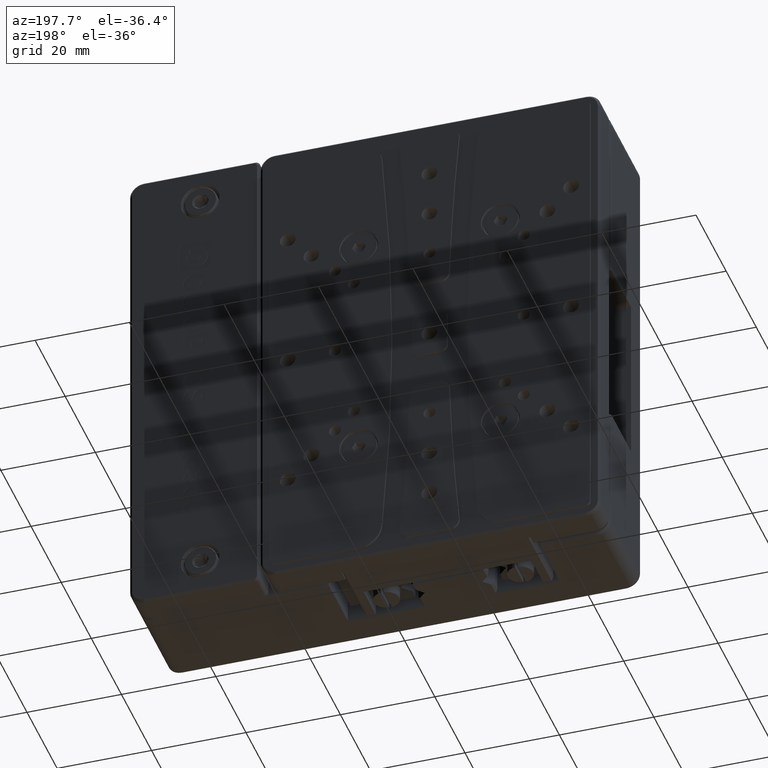
[diagram: clean part render]
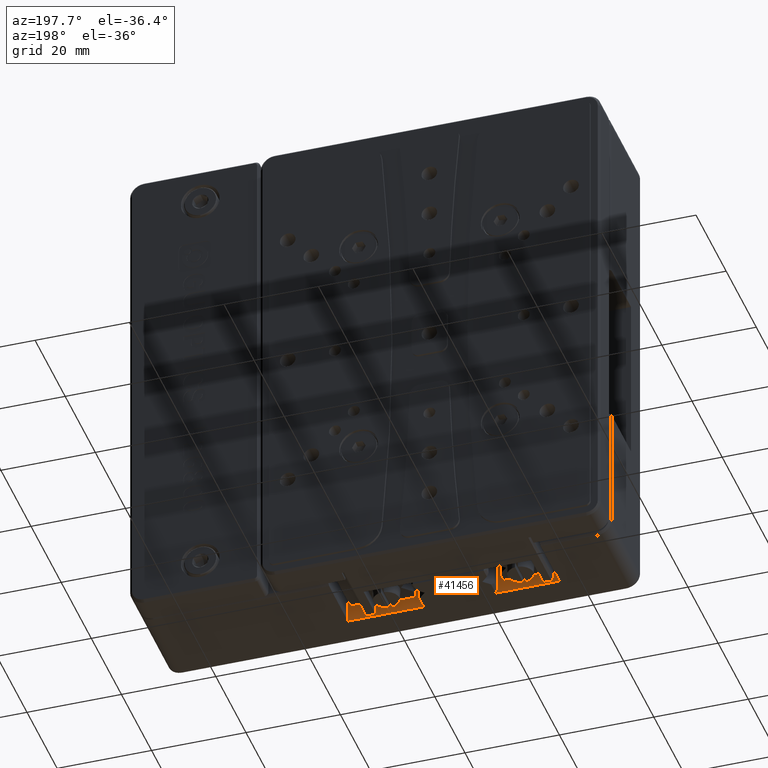
[diagram: same view with one face highlighted and labeled with its STEP entity id]
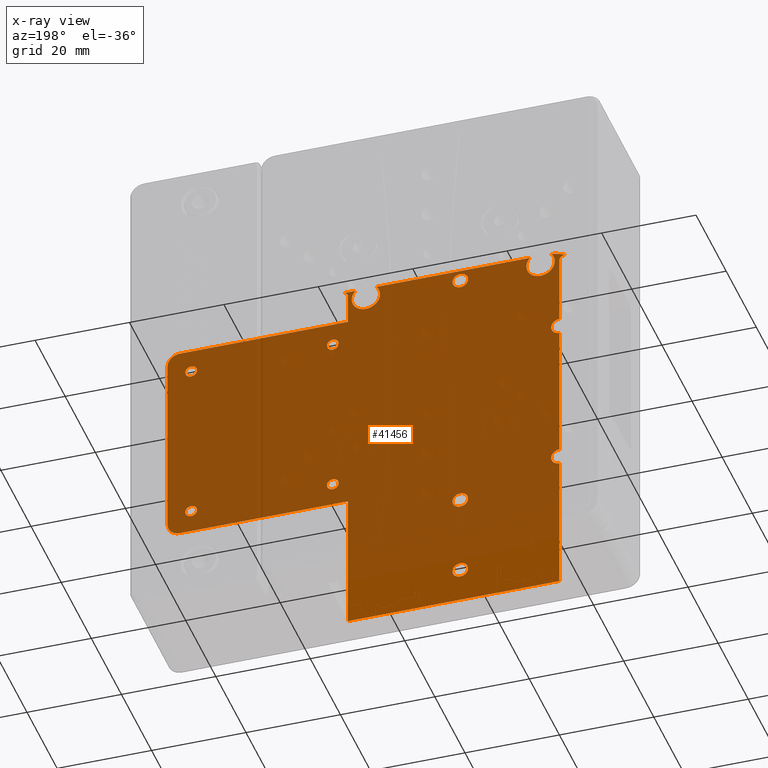
[diagram: x-ray of the same camera — body ghosted, the highlighted face saturated]
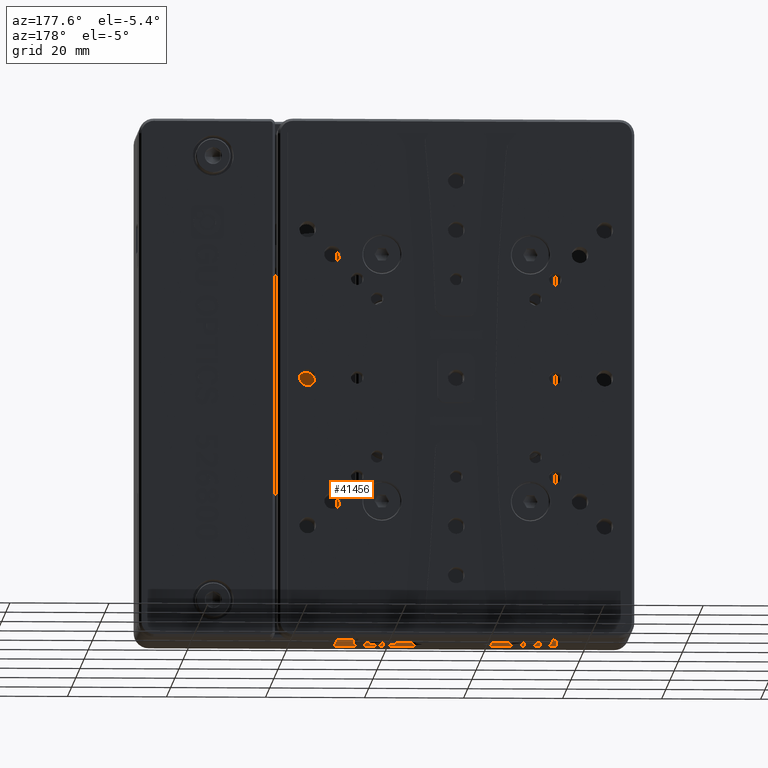
[diagram: same view with one face highlighted and labeled with its STEP entity id]
A machine part, auxiliary view. The second image highlights one B-rep face of the part: STEP entity #41456.
The next image is the same camera in x-ray: the body ghosted, the highlighted face saturated — about 92% of this face is hidden behind the body in this view.
A second angle (auxiliary view) of the same face is appended — the face is thin or edge-on in the first view.
In plain terms, the highlighted planar face has unit normal (-0, 1, 0).
Its self-contained STEP definition (entity closure, byte-faithful):
#112 = CARTESIAN_POINT ( 'NONE',  ( 13.76818339996864500, -13.00000000000000400, -18.49958355299772700 ) ) ;
#307 = VERTEX_POINT ( 'NONE', #13051 ) ;
#382 = VERTEX_POINT ( 'NONE', #35853 ) ;
#424 = CARTESIAN_POINT ( 'NONE',  ( 13.62952372546362600, -13.00000000000000200, 16.40776701455717700 ) ) ;
#543 = CARTESIAN_POINT ( 'NONE',  ( -12.35000000000000000, -13.00000000000000000, -27.50000000000000000 ) ) ;
#668 = CARTESIAN_POINT ( 'NONE',  ( 44.21746584583538500, -13.00000000000000400, 17.17281514455090600 ) ) ;
#690 = CARTESIAN_POINT ( 'NONE',  ( 41.78253415416460800, -13.00000000000000400, 17.82718485544910100 ) ) ;
#694 = CARTESIAN_POINT ( 'NONE',  ( 5.746376811595000700, -13.00000000000000000, 29.89999999999999900 ) ) ;
#722 = EDGE_CURVE ( 'NONE', #14382, #42632, #29923, .T. ) ;
#746 = ORIENTED_EDGE ( 'NONE', *, *, #48031, .F. ) ;
#770 = VERTEX_POINT ( 'NONE', #27550 ) ;
#889 = CARTESIAN_POINT ( 'NONE',  ( -13.16902868238801900, -12.99999999999999800, 28.94174754078451900 ) ) ;
#904 = CARTESIAN_POINT ( 'NONE',  ( 11.75000000000000200, -13.00000000000000200, 17.33637538262553300 ) ) ;
#973 = CARTESIAN_POINT ( 'NONE',  ( 48.00000000000000000, -13.00000000000000000, 19.90000000000000200 ) ) ;
#989 = LINE ( 'NONE', #9644, #39958 ) ;
#1017 = CARTESIAN_POINT ( 'NONE',  ( 45.74033920413890500, -13.00000000000000000, -22.50000000000000700 ) ) ;
#1066 = CARTESIAN_POINT ( 'NONE',  ( 47.93232895933761700, -13.00000000000000400, 20.58054449933412800 ) ) ;
#1098 = CARTESIAN_POINT ( 'NONE',  ( -33.92454324004390300, -13.00000000000000000, 12.84941697419681500 ) ) ;
#1154 = CARTESIAN_POINT ( 'NONE',  ( 12.37047627453637200, -13.00000000000000200, 18.59223298544282000 ) ) ;
#1182 = CARTESIAN_POINT ( 'NONE',  ( 47.67184460972107700, -13.00000000000000200, -21.20940934896433600 ) ) ;
#1244 = CARTESIAN_POINT ( 'NONE',  ( -35.00000000000000000, -13.00000000000000000, 9.700000000000001100 ) ) ;
#1252 = CARTESIAN_POINT ( 'NONE',  ( 7.149229621920564000, -13.00000000000000000, 25.06979736796481000 ) ) ;
#1488 = CARTESIAN_POINT ( 'NONE',  ( -14.83097131761197900, -12.99999999999999800, -46.44174754078450500 ) ) ;
#1675 = CARTESIAN_POINT ( 'NONE',  ( 44.09223298544281300, -13.00000000000000000, -18.12952372546362400 ) ) ;
#1823 = B_SPLINE_CURVE_WITH_KNOTS ( 'NONE', 3,
 ( #12407, #16024, #42592, #19942, #46374, #23765, #1154, #27545, #4958, #31314 ),
 .UNSPECIFIED., .F., .F.,
 ( 4, 2, 2, 2, 4 ),
 ( 0.0000000000000000000, 0.1250000000000000000, 0.2500000000000000000, 0.3750000000000000000, 0.5000000000000000000 ),
 .UNSPECIFIED. ) ;
#1938 = VERTEX_POINT ( 'NONE', #24973 ) ;
#1962 = VECTOR ( 'NONE', #35355, 1000.000000000000000 ) ;
#2067 = LINE ( 'NONE', #36635, #32155 ) ;
#2146 = CARTESIAN_POINT ( 'NONE',  ( -33.92454324004391000, -12.99999999999999800, -22.64941697419682500 ) ) ;
#2169 = CARTESIAN_POINT ( 'NONE',  ( 10.18645353713236900, -13.00000000000000000, 29.70056423971731600 ) ) ;
#2177 = EDGE_CURVE ( 'NONE', #1938, #38560, #23526, .T. ) ;
#2184 = CARTESIAN_POINT ( 'NONE',  ( 43.16362461737446700, -13.00000000000000000, -16.24999999999999600 ) ) ;
#2265 = EDGE_CURVE ( 'NONE', #24884, #41123, #22985, .T. ) ;
#2359 = CARTESIAN_POINT ( 'NONE',  ( 44.25000000000000000, -13.00000000000000000, -17.50000000000000000 ) ) ;
#2521 = CARTESIAN_POINT ( 'NONE',  ( -14.00000000000000200, -13.00000000000000200, 29.15000000000000200 ) ) ;
#2532 = CARTESIAN_POINT ( 'NONE',  ( -14.00000000000000000, -13.00000000000000200, -46.64999999999999900 ) ) ;
#2611 = CARTESIAN_POINT ( 'NONE',  ( -12.98599791204139300, -13.00000000000000200, -26.18054971004300300 ) ) ;
#2649 = CARTESIAN_POINT ( 'NONE',  ( -35.65575781349518500, -13.00000000000000000, 28.90152097021609400 ) ) ;
#2661 = EDGE_CURVE ( 'NONE', #24546, #770, #35326, .T. ) ;
#2678 = ORIENTED_EDGE ( 'NONE', *, *, #28953, .F. ) ;
#2700 = CARTESIAN_POINT ( 'NONE',  ( -36.50724637681094700, -13.00000000000000000, 28.80822858573050000 ) ) ;
#2805 = CARTESIAN_POINT ( 'NONE',  ( -12.35000000000000000, -13.00000000000000000, -45.00000000000000000 ) ) ;
#2814 = CARTESIAN_POINT ( 'NONE',  ( 42.67281514455090300, -13.00000000000000200, 16.28253415416460500 ) ) ;
#2841 = VERTEX_POINT ( 'NONE', #21809 ) ;
#2947 = CARTESIAN_POINT ( 'NONE',  ( -35.00000000000000000, -13.00000000000000000, 0.0000000000000000000 ) ) ;
#2994 = CARTESIAN_POINT ( 'NONE',  ( -12.98599791204139300, -13.00000000000000200, -43.68054971004298900 ) ) ;
#2997 = EDGE_LOOP ( 'NONE', ( #5457, #24848, #6378, #39732 ) ) ;
#3010 = VECTOR ( 'NONE', #33076, 1000.000000000000000 ) ;
#3119 = CARTESIAN_POINT ( 'NONE',  ( 12.37047627453637200, -12.99999999999999800, -18.59223298544282300 ) ) ;
#3127 = CARTESIAN_POINT ( 'NONE',  ( -12.35000000000000000, -13.00000000000000000, -27.71598449493429000 ) ) ;
#3248 = AXIS2_PLACEMENT_3D ( 'NONE', #9596, #17483, #43881 ) ;
#3295 = CARTESIAN_POINT ( 'NONE',  ( -14.00000000000000000, -13.00000000000000200, -29.15000000000000200 ) ) ;
#3311 = ORIENTED_EDGE ( 'NONE', *, *, #23970, .F. ) ;
#3332 = CARTESIAN_POINT ( 'NONE',  ( -13.78401550506570000, -13.00000000000000200, 25.85000000000000500 ) ) ;
#3444 = VECTOR ( 'NONE', #6952, 1000.000000000000000 ) ;
#3475 = EDGE_CURVE ( 'NONE', #28900, #15066, #18433, .T. ) ;
#3572 = VERTEX_POINT ( 'NONE', #10516 ) ;
#3579 = ORIENTED_EDGE ( 'NONE', *, *, #47916, .F. ) ;
#3606 = B_SPLINE_CURVE_WITH_KNOTS ( 'NONE', 3,
 ( #30699, #15545, #690, #4486, #30851, #8299, #34685, #12080, #38432, #15883 ),
 .UNSPECIFIED., .F., .F.,
 ( 4, 2, 2, 2, 4 ),
 ( 0.0000000000000000000, 0.1250000000000000000, 0.2500000000000000000, 0.3750000000000000000, 0.5000000000000000000 ),
 .UNSPECIFIED. ) ;
#3897 = CARTESIAN_POINT ( 'NONE',  ( 41.78253415416460800, -13.00000000000000400, -17.17281514455090300 ) ) ;
#3909 = CARTESIAN_POINT ( 'NONE',  ( 13.32718485544910100, -12.99999999999999800, -18.71746584583540200 ) ) ;
#3992 = CARTESIAN_POINT ( 'NONE',  ( 44.25000000000000000, -13.00000000000000000, 17.33637538262553300 ) ) ;
#4044 = CARTESIAN_POINT ( 'NONE',  ( -15.31945028995699700, -13.00000000000000200, 28.51400208795861200 ) ) ;
#4154 = CARTESIAN_POINT ( 'NONE',  ( -14.43188400919281400, -12.99999999999999800, -25.89294508349728100 ) ) ;
#4226 = CARTESIAN_POINT ( 'NONE',  ( 13.16362461737447200, -13.00000000000000200, 16.25000000000000400 ) ) ;
#4307 = VERTEX_POINT ( 'NONE', #32420 ) ;
#4455 = CARTESIAN_POINT ( 'NONE',  ( 43.99958355299772700, -13.00000000000000200, 16.73181660003135500 ) ) ;
#4486 = CARTESIAN_POINT ( 'NONE',  ( 41.90776701455716600, -13.00000000000000000, 18.12952372546362400 ) ) ;
#4698 = FACE_BOUND ( 'NONE', #27824, .T. ) ;
#4701 = CARTESIAN_POINT ( 'NONE',  ( -12.68054971004300500, -13.00000000000000400, 28.51400208795861200 ) ) ;
#4721 = CARTESIAN_POINT ( 'NONE',  ( -15.65000000000000000, -13.00000000000000000, 27.50000000000000000 ) ) ;
#4802 = CARTESIAN_POINT ( 'NONE',  ( 13.16362461737446500, -13.00000000000000000, -16.24999999999999600 ) ) ;
#4902 = CARTESIAN_POINT ( 'NONE',  ( -33.47087382038005600, -13.00000000000000000, 12.33133321564907300 ) ) ;
#4958 = CARTESIAN_POINT ( 'NONE',  ( 12.83637538262553200, -13.00000000000000200, 18.75000000000000400 ) ) ;
#4959 = VERTEX_POINT ( 'NONE', #32659 ) ;
#4990 = CARTESIAN_POINT ( 'NONE',  ( 48.00000000000000000, -13.00000000000000200, -20.24033920413889100 ) ) ;
#5003 = EDGE_LOOP ( 'NONE', ( #33786, #24806, #29815, #12539 ) ) ;
#5074 = CARTESIAN_POINT ( 'NONE',  ( 5.424869004244545300, -12.99999999999999800, 24.90000000000000600 ) ) ;
#5083 = B_SPLINE_CURVE_WITH_KNOTS ( 'NONE', 3,
 ( #39278, #43122, #24298, #1675, #28058, #5487, #31853, #9292, #35664, #13089 ),
 .UNSPECIFIED., .F., .F.,
 ( 4, 2, 2, 2, 4 ),
 ( 0.0000000000000000000, 0.1250000000000000000, 0.2500000000000000000, 0.3750000000000000000, 0.5000000000000000000 ),
 .UNSPECIFIED. ) ;
#5180 = EDGE_CURVE ( 'NONE', #38560, #29601, #25036, .T. ) ;
#5197 = CARTESIAN_POINT ( 'NONE',  ( 12.83637538262553300, -13.00000000000000000, 16.24999999999999600 ) ) ;
#5317 = CARTESIAN_POINT ( 'NONE',  ( -15.31945028995699700, -13.00000000000000400, -46.01400208795860200 ) ) ;
#5457 = ORIENTED_EDGE ( 'NONE', *, *, #27485, .F. ) ;
#5487 = CARTESIAN_POINT ( 'NONE',  ( 43.76818339996864900, -13.00000000000000400, -18.49958355299772700 ) ) ;
#5748 = CARTESIAN_POINT ( 'NONE',  ( -35.04709098999391900, -13.00000000000000000, 28.29667118625660300 ) ) ;
#5801 = CARTESIAN_POINT ( 'NONE',  ( -34.54194120237127000, -13.00000000000000200, -19.54554781583045300 ) ) ;
#5867 = FACE_BOUND ( 'NONE', #10466, .T. ) ;
#5961 = CARTESIAN_POINT ( 'NONE',  ( -34.54194120237126200, -13.00000000000000000, -22.95445218416955400 ) ) ;
#5986 = CARTESIAN_POINT ( 'NONE',  ( 9.926867445814508500, -13.00000000000000000, 29.40500714127560800 ) ) ;
#6001 = DIRECTION ( 'NONE',  ( -0.0000000000000000000, -0.0000000000000000000, 1.000000000000000000 ) ) ;
#6378 = ORIENTED_EDGE ( 'NONE', *, *, #31604, .F. ) ;
#6424 = CARTESIAN_POINT ( 'NONE',  ( -12.55825245921548100, -13.00000000000000200, -26.66902868238801400 ) ) ;
#6623 = CARTESIAN_POINT ( 'NONE',  ( 42.23181660003135100, -13.00000000000000200, 16.50041644700227600 ) ) ;
#6781 = CARTESIAN_POINT ( 'NONE',  ( -12.55825245921547100, -13.00000000000000000, -45.83097131761195400 ) ) ;
#6790 = CARTESIAN_POINT ( 'NONE',  ( -12.55825245921548100, -13.00000000000000200, -44.16902868238801000 ) ) ;
#6929 = CARTESIAN_POINT ( 'NONE',  ( 12.00041644700227600, -13.00000000000000400, -18.26818339996864500 ) ) ;
#6952 = DIRECTION ( 'NONE',  ( -1.000000000000000000, -0.0000000000000000000, -0.0000000000000000000 ) ) ;
#6973 = CARTESIAN_POINT ( 'NONE',  ( -12.35000000000000000, -13.00000000000000000, 27.28401550506570700 ) ) ;
#7249 = CARTESIAN_POINT ( 'NONE',  ( 9.799999999999998900, -13.00000000000000000, 22.50000000000000000 ) ) ;
#7407 = B_SPLINE_CURVE_WITH_KNOTS ( 'NONE', 3,
 ( #12510, #35089, #16280, #42687, #20042, #46478, #23882, #1252, #27657, #5074, #31421, #8878, #35252, #12671, #39025, #16444, #42859, #20188 ),
 .UNSPECIFIED., .F., .F.,
 ( 4, 2, 2, 2, 2, 2, 2, 2, 4 ),
 ( 0.0000000000000000000, 0.1250000000000000800, 0.2500000000000001700, 0.3750000000000002200, 0.5000000000000001100, 0.6250000000000001100, 0.7500000000000000000, 0.8750000000000000000, 1.000000000000000000 ),
 .UNSPECIFIED. ) ;
#7488 = VERTEX_POINT ( 'NONE', #14459 ) ;
#7702 = CARTESIAN_POINT ( 'NONE',  ( 42.00041644700226600, -13.00000000000000200, -16.73181660003135500 ) ) ;
#7711 = CARTESIAN_POINT ( 'NONE',  ( 13.00000000000000000, -13.00000000000000200, -18.75000000000000000 ) ) ;
#7737 = VERTEX_POINT ( 'NONE', #22231 ) ;
#7771 = ORIENTED_EDGE ( 'NONE', *, *, #42747, .T. ) ;
#7807 = DIRECTION ( 'NONE',  ( -0.0000000000000000000, -0.0000000000000000000, 1.000000000000000000 ) ) ;
#7891 = ORIENTED_EDGE ( 'NONE', *, *, #3475, .F. ) ;
#7951 = CARTESIAN_POINT ( 'NONE',  ( 12.99999999999999800, -13.00000000000000200, -16.24999999999999600 ) ) ;
#8153 = EDGE_CURVE ( 'NONE', #15066, #4959, #23542, .T. ) ;
#8270 = CARTESIAN_POINT ( 'NONE',  ( 43.62952372546361300, -13.00000000000000200, 16.40776701455717700 ) ) ;
#8299 = CARTESIAN_POINT ( 'NONE',  ( 42.23181660003135800, -13.00000000000000400, 18.49958355299773100 ) ) ;
#8418 = CARTESIAN_POINT ( 'NONE',  ( -33.64393688518783400, -12.99999999999999500, 29.42904631081987100 ) ) ;
#8497 = CARTESIAN_POINT ( 'NONE',  ( -12.39294508349728100, -13.00000000000000000, 27.93188400919281400 ) ) ;
#8515 = CARTESIAN_POINT ( 'NONE',  ( 14.25000000000000000, -13.00000000000000000, -17.50000000000000000 ) ) ;
#8517 = CARTESIAN_POINT ( 'NONE',  ( 12.00041644700227600, -13.00000000000000400, 16.73181660003136200 ) ) ;
#8547 = CARTESIAN_POINT ( 'NONE',  ( -35.00000000000000000, -13.00000000000000000, 13.19999999999999900 ) ) ;
#8635 = CARTESIAN_POINT ( 'NONE',  ( -14.21598449493430400, -13.00000000000000200, 29.15000000000000200 ) ) ;
#8707 = CARTESIAN_POINT ( 'NONE',  ( -33.25000000000000000, -13.00000000000000000, 11.67907446432425400 ) ) ;
#8751 = CARTESIAN_POINT ( 'NONE',  ( -15.65000000000000000, -13.00000000000000000, -27.28401550506570000 ) ) ;
#8878 = CARTESIAN_POINT ( 'NONE',  ( 3.885561322039266000, -13.00000000000000400, 25.69547630100688100 ) ) ;
#8971 = CARTESIAN_POINT ( 'NONE',  ( 5.746376811595010500, -13.00000000000000000, -22.50000000000000000 ) ) ;
#9032 = ORIENTED_EDGE ( 'NONE', *, *, #12075, .F. ) ;
#9101 = CARTESIAN_POINT ( 'NONE',  ( -15.60705491650272400, -13.00000000000000000, -45.43188400919282800 ) ) ;
#9292 = CARTESIAN_POINT ( 'NONE',  ( 43.32718485544909700, -12.99999999999999800, -18.71746584583540200 ) ) ;
#9313 = CARTESIAN_POINT ( 'NONE',  ( 8.236067977499930100, -13.00000000000000000, 29.89999999999999900 ) ) ;
#9495 = EDGE_CURVE ( 'NONE', #45669, #24546, #16359, .T. ) ;
#9523 = CARTESIAN_POINT ( 'NONE',  ( -35.00000000000000000, -13.00000000000000000, 13.19999999999999900 ) ) ;
#9596 = CARTESIAN_POINT ( 'NONE',  ( -38.19739130434999900, -13.00000000000000000, 54.60000000000000100 ) ) ;
#9604 = CARTESIAN_POINT ( 'NONE',  ( -33.92454324004390300, -13.00000000000000000, -19.85058302580318900 ) ) ;
#9644 = CARTESIAN_POINT ( 'NONE',  ( 9.799999999999998900, -13.00000000000000000, 0.0000000000000000000 ) ) ;
#9724 = VERTEX_POINT ( 'NONE', #21122 ) ;
#9764 = CARTESIAN_POINT ( 'NONE',  ( -35.00000000000000000, -13.00000000000000000, -23.00000000000000000 ) ) ;
#9789 = CARTESIAN_POINT ( 'NONE',  ( 9.799999999999997200, -13.00000000000000000, 29.03279857933290500 ) ) ;
#9995 = CARTESIAN_POINT ( 'NONE',  ( -15.60705491650272200, -13.00000000000000400, -27.06811599080719300 ) ) ;
#10142 = CARTESIAN_POINT ( 'NONE',  ( 43.16362461737446700, -13.00000000000000000, 18.75000000000000000 ) ) ;
#10161 = CARTESIAN_POINT ( 'NONE',  ( 11.78253415416460600, -13.00000000000000400, -17.17281514455090300 ) ) ;
#10220 = CARTESIAN_POINT ( 'NONE',  ( -12.35000000000000300, -13.00000000000000200, -27.28401550506570300 ) ) ;
#10254 = ORIENTED_EDGE ( 'NONE', *, *, #34907, .F. ) ;
#10269 = DIRECTION ( 'NONE',  ( -0.0000000000000000000, -0.0000000000000000000, -1.000000000000000000 ) ) ;
#10283 = EDGE_LOOP ( 'NONE', ( #29059, #40384, #11935, #27327 ) ) ;
#10422 = CARTESIAN_POINT ( 'NONE',  ( 41.90776701455717300, -13.00000000000000200, 16.87047627453637900 ) ) ;
#10466 = EDGE_LOOP ( 'NONE', ( #39866, #45550, #11041, #2678 ) ) ;
#10488 = CARTESIAN_POINT ( 'NONE',  ( 48.00000000000000000, -13.00000000000000000, 0.0000000000000000000 ) ) ;
#10516 = CARTESIAN_POINT ( 'NONE',  ( 10.80000000000000100, -13.00000000000000000, 29.89999999999999900 ) ) ;
#10584 = CARTESIAN_POINT ( 'NONE',  ( -12.98599791204139100, -13.00000000000000400, -46.31945028995699700 ) ) ;
#10596 = CARTESIAN_POINT ( 'NONE',  ( -12.35000000000000300, -13.00000000000000200, -44.78401550506569600 ) ) ;
#10726 = CARTESIAN_POINT ( 'NONE',  ( 11.78253415416460800, -13.00000000000000000, -17.82718485544910100 ) ) ;
#10932 = CARTESIAN_POINT ( 'NONE',  ( -30.40198450108101400, -12.99999999999999800, 24.90487690794829900 ) ) ;
#10966 = CARTESIAN_POINT ( 'NONE',  ( -15.60705491650272200, -13.00000000000000400, -44.56811599080720000 ) ) ;
#11033 = CARTESIAN_POINT ( 'NONE',  ( 3.763932022500105400, -13.00000000000000000, 29.89999999999999900 ) ) ;
#11041 = ORIENTED_EDGE ( 'NONE', *, *, #32636, .F. ) ;
#11060 = EDGE_CURVE ( 'NONE', #3572, #15227, #29992, .T. ) ;
#11067 = LINE ( 'NONE', #30524, #21022 ) ;
#11177 = ORIENTED_EDGE ( 'NONE', *, *, #42059, .T. ) ;
#11185 = CARTESIAN_POINT ( 'NONE',  ( 41.75000000000000000, -13.00000000000000000, 17.50000000000000000 ) ) ;
#11331 = CARTESIAN_POINT ( 'NONE',  ( 14.25000000000000000, -13.00000000000000000, -17.50000000000000000 ) ) ;
#11475 = CARTESIAN_POINT ( 'NONE',  ( 42.37047627453637900, -13.00000000000000200, -16.40776701455718400 ) ) ;
#11518 = CARTESIAN_POINT ( 'NONE',  ( 13.62952372546362400, -12.99999999999999800, 18.59223298544282000 ) ) ;
#11526 = CARTESIAN_POINT ( 'NONE',  ( -15.65000000000000000, -13.00000000000000000, -27.50000000000000000 ) ) ;
#11572 = EDGE_CURVE ( 'NONE', #33210, #22321, #26048, .T. ) ;
#11615 = CARTESIAN_POINT ( 'NONE',  ( -33.89066230987539500, -12.99999999999999800, 28.88613198090034100 ) ) ;
#11646 = CARTESIAN_POINT ( 'NONE',  ( 14.25000000000000000, -13.00000000000000000, 17.50000000000000000 ) ) ;
#11730 = CARTESIAN_POINT ( 'NONE',  ( -14.00000000000000200, -13.00000000000000200, -25.84999999999999800 ) ) ;
#11865 = DIRECTION ( 'NONE',  ( 0.0000000000000000000, 0.0000000000000000000, 1.000000000000000000 ) ) ;
#11935 = ORIENTED_EDGE ( 'NONE', *, *, #2661, .F. ) ;
#12051 = CARTESIAN_POINT ( 'NONE',  ( 43.16362461737446700, -13.00000000000000200, 16.25000000000000400 ) ) ;
#12075 = EDGE_CURVE ( 'NONE', #22321, #31998, #48930, .T. ) ;
#12080 = CARTESIAN_POINT ( 'NONE',  ( 42.67281514455090300, -12.99999999999999800, 18.71746584583539500 ) ) ;
#12148 = CARTESIAN_POINT ( 'NONE',  ( -28.48807617092831600, -12.99999999999999600, 26.16258135429870500 ) ) ;
#12215 = EDGE_CURVE ( 'NONE', #32975, #48857, #34152, .T. ) ;
#12290 = CARTESIAN_POINT ( 'NONE',  ( -12.35000000000000000, -13.00000000000000000, 27.50000000000000000 ) ) ;
#12312 = CARTESIAN_POINT ( 'NONE',  ( 45.74033920413889100, -13.00000000000000200, 22.49999999999999600 ) ) ;
#12407 = CARTESIAN_POINT ( 'NONE',  ( 11.75000000000000000, -13.00000000000000000, 17.50000000000000000 ) ) ;
#12503 = CARTESIAN_POINT ( 'NONE',  ( -33.29554781583045300, -13.00000000000000200, 10.99194120237125600 ) ) ;
#12510 = CARTESIAN_POINT ( 'NONE',  ( 8.236067977499930100, -13.00000000000000000, 29.89999999999999900 ) ) ;
#12539 = ORIENTED_EDGE ( 'NONE', *, *, #19043, .F. ) ;
#12540 = ORIENTED_EDGE ( 'NONE', *, *, #34904, .F. ) ;
#12596 = CARTESIAN_POINT ( 'NONE',  ( 42.37047627453637900, -12.99999999999999800, -18.59223298544282300 ) ) ;
#12649 = VECTOR ( 'NONE', #17927, 1000.000000000000000 ) ;
#12671 = CARTESIAN_POINT ( 'NONE',  ( 3.026590966664242100, -13.00000000000000000, 27.20027549510113500 ) ) ;
#12747 = CARTESIAN_POINT ( 'NONE',  ( -14.00000000000000000, -13.00000000000000200, -46.64999999999999900 ) ) ;
#12798 = CARTESIAN_POINT ( 'NONE',  ( -15.65000000000000000, -13.00000000000000000, 27.71598449493429700 ) ) ;
#12800 = CARTESIAN_POINT ( 'NONE',  ( 46.99782147193478500, -13.00000000000000400, 21.97913379023527400 ) ) ;
#12803 = ORIENTED_EDGE ( 'NONE', *, *, #39492, .F. ) ;
#12806 = EDGE_CURVE ( 'NONE', #21149, #19830, #13128, .T. ) ;
#12910 = CARTESIAN_POINT ( 'NONE',  ( -15.65000000000000000, -13.00000000000000000, -45.00000000000000000 ) ) ;
#12947 = CARTESIAN_POINT ( 'NONE',  ( 14.24999999999999600, -13.00000000000000200, -17.33637538262553000 ) ) ;
#12954 = CARTESIAN_POINT ( 'NONE',  ( -34.40777155499062400, -12.99999999999999800, 29.75109348605347700 ) ) ;
#13051 = CARTESIAN_POINT ( 'NONE',  ( -35.00000000000000000, -13.00000000000000000, 9.700000000000001100 ) ) ;
#13081 = CARTESIAN_POINT ( 'NONE',  ( -35.22295895980055000, -13.00000000000000000, 28.59981363568887100 ) ) ;
#13089 = CARTESIAN_POINT ( 'NONE',  ( 43.00000000000000000, -13.00000000000000200, -18.75000000000000000 ) ) ;
#13128 = B_SPLINE_CURVE_WITH_KNOTS ( 'NONE', 3,
 ( #34986, #4802, #39406, #23753, #31308, #41789, #44698, #38960, #12947, #34660 ),
 .UNSPECIFIED., .F., .F.,
 ( 4, 2, 2, 2, 4 ),
 ( 0.5000000000000000000, 0.6250000000000000000, 0.7500000000000000000, 0.8750000000000000000, 1.000000000000000000 ),
 .UNSPECIFIED. ) ;
#13263 = CARTESIAN_POINT ( 'NONE',  ( -15.65000000000000000, -13.00000000000000200, -27.71598449493430000 ) ) ;
#13277 = EDGE_CURVE ( 'NONE', #32036, #39230, #3606, .T. ) ;
#13388 = CARTESIAN_POINT ( 'NONE',  ( -33.47087382038005600, -13.00000000000000000, -20.36866678435092800 ) ) ;
#13455 = ORIENTED_EDGE ( 'NONE', *, *, #8153, .F. ) ;
#13532 = FACE_OUTER_BOUND ( 'NONE', #40598, .T. ) ;
#13593 = CARTESIAN_POINT ( 'NONE',  ( 43.32718485544910400, -13.00000000000000200, -16.28253415416460500 ) ) ;
#13629 = EDGE_CURVE ( 'NONE', #4307, #46266, #47050, .T. ) ;
#13678 = CARTESIAN_POINT ( 'NONE',  ( -15.65000000000000000, -13.00000000000000000, -27.50000000000000000 ) ) ;
#13811 = CARTESIAN_POINT ( 'NONE',  ( 9.799999999999998900, -13.00000000000000000, 28.89999999999999900 ) ) ;
#13845 = CARTESIAN_POINT ( 'NONE',  ( -14.00000000000000200, -13.00000000000000200, -25.84999999999999800 ) ) ;
#13940 = CARTESIAN_POINT ( 'NONE',  ( 43.62952372546360600, -12.99999999999999800, 18.59223298544282000 ) ) ;
#13957 = CARTESIAN_POINT ( 'NONE',  ( 12.00041644700227600, -13.00000000000000200, -16.73181660003135500 ) ) ;
#13984 = CARTESIAN_POINT ( 'NONE',  ( -15.01400208795860900, -13.00000000000000200, -28.81945028995700400 ) ) ;
#14218 = CARTESIAN_POINT ( 'NONE',  ( 41.74999999999999300, -13.00000000000000200, 17.33637538262553300 ) ) ;
#14235 = LINE ( 'NONE', #10488, #3010 ) ;
#14319 = CARTESIAN_POINT ( 'NONE',  ( -15.44174754078452600, -13.00000000000000200, 26.66902868238802100 ) ) ;
#14368 = CARTESIAN_POINT ( 'NONE',  ( -13.56811599080718600, -12.99999999999999800, -46.60705491650272600 ) ) ;
#14382 = VERTEX_POINT ( 'NONE', #45077 ) ;
#14459 = CARTESIAN_POINT ( 'NONE',  ( -15.65000000000000000, -13.00000000000000000, -45.00000000000000000 ) ) ;
#14498 = CARTESIAN_POINT ( 'NONE',  ( 11.75000000000000000, -13.00000000000000000, -17.50000000000000000 ) ) ;
#14508 = CARTESIAN_POINT ( 'NONE',  ( -12.39294508349727900, -13.00000000000000400, -27.93188400919281000 ) ) ;
#14515 = CARTESIAN_POINT ( 'NONE',  ( 41.75000000000000000, -13.00000000000000000, -17.50000000000000000 ) ) ;
#14578 = VERTEX_POINT ( 'NONE', #31301 ) ;
#14757 = FACE_BOUND ( 'NONE', #40565, .T. ) ;
#14767 = CARTESIAN_POINT ( 'NONE',  ( -15.31945028995699700, -13.00000000000000200, -43.98599791204139100 ) ) ;
#14890 = EDGE_CURVE ( 'NONE', #44683, #36776, #29254, .T. ) ;
#15066 = VERTEX_POINT ( 'NONE', #16253 ) ;
#15149 = CARTESIAN_POINT ( 'NONE',  ( 13.32718485544909900, -13.00000000000000200, 18.71746584583540200 ) ) ;
#15192 = ORIENTED_EDGE ( 'NONE', *, *, #5180, .F. ) ;
#15227 = VERTEX_POINT ( 'NONE', #9313 ) ;
#15274 = CARTESIAN_POINT ( 'NONE',  ( 42.83637538262552600, -13.00000000000000200, -16.25000000000000000 ) ) ;
#15311 = CARTESIAN_POINT ( 'NONE',  ( 13.99958355299772200, -13.00000000000000400, 18.26818339996865200 ) ) ;
#15314 = VERTEX_POINT ( 'NONE', #18700 ) ;
#15516 = CARTESIAN_POINT ( 'NONE',  ( -14.21598449493430400, -13.00000000000000200, -25.85000000000000500 ) ) ;
#15545 = CARTESIAN_POINT ( 'NONE',  ( 41.75000000000000000, -13.00000000000000000, 17.66362461737447000 ) ) ;
#15690 = EDGE_CURVE ( 'NONE', #7737, #45669, #47593, .T. ) ;
#15873 = CARTESIAN_POINT ( 'NONE',  ( 11.75000000000000000, -13.00000000000000000, 17.50000000000000000 ) ) ;
#15883 = CARTESIAN_POINT ( 'NONE',  ( 43.00000000000000000, -13.00000000000000200, 18.75000000000000400 ) ) ;
#16024 = CARTESIAN_POINT ( 'NONE',  ( 11.74999999999999600, -13.00000000000000000, 17.66362461737447000 ) ) ;
#16039 = CARTESIAN_POINT ( 'NONE',  ( -28.38189952039906000, -13.00000000000000400, 29.47287467784371300 ) ) ;
#16085 = CARTESIAN_POINT ( 'NONE',  ( 12.23181660003135800, -13.00000000000000200, 16.50041644700227600 ) ) ;
#16117 = CARTESIAN_POINT ( 'NONE',  ( -34.77092553567574400, -13.00000000000000000, 13.20000000000000100 ) ) ;
#16186 = ORIENTED_EDGE ( 'NONE', *, *, #31454, .F. ) ;
#16253 = CARTESIAN_POINT ( 'NONE',  ( -15.65000000000000000, -13.00000000000000000, -27.50000000000000000 ) ) ;
#16268 = CARTESIAN_POINT ( 'NONE',  ( -33.60058302580319600, -13.00000000000000200, 10.37454324004389700 ) ) ;
#16280 = CARTESIAN_POINT ( 'NONE',  ( 8.875661573056932600, -12.99999999999999800, 28.93021656923307800 ) ) ;
#16359 = B_SPLINE_CURVE_WITH_KNOTS ( 'NONE', 3,
 ( #29788, #36017, #17202, #24315, #18414, #47962, #14319, #48889, #43363, #42801 ),
 .UNSPECIFIED., .F., .F.,
 ( 4, 2, 2, 2, 4 ),
 ( 0.5000000000000000000, 0.6250000000000000000, 0.7500000000000000000, 0.8750000000000000000, 1.000000000000000000 ),
 .UNSPECIFIED. ) ;
#16378 = CARTESIAN_POINT ( 'NONE',  ( 42.00041644700227300, -13.00000000000000400, -18.26818339996864500 ) ) ;
#16444 = CARTESIAN_POINT ( 'NONE',  ( 3.124338426943067000, -13.00000000000000400, 28.93021656923308500 ) ) ;
#16490 = CARTESIAN_POINT ( 'NONE',  ( -14.00000000000000000, -13.00000000000000200, -29.15000000000000200 ) ) ;
#16571 = CARTESIAN_POINT ( 'NONE',  ( 48.00000000000000000, -13.00000000000000000, 19.90000000000000200 ) ) ;
#16625 = ORIENTED_EDGE ( 'NONE', *, *, #44649, .F. ) ;
#16697 = CARTESIAN_POINT ( 'NONE',  ( -36.50724637681094700, -13.00000000000000000, 28.80822858573050000 ) ) ;
#16860 = VERTEX_POINT ( 'NONE', #47835 ) ;
#17170 = CARTESIAN_POINT ( 'NONE',  ( -33.25000000000000000, -13.00000000000000000, -21.02092553567575100 ) ) ;
#17200 = CARTESIAN_POINT ( 'NONE',  ( 10.80000000000000100, -13.00000000000000000, 29.89999999999999900 ) ) ;
#17202 = CARTESIAN_POINT ( 'NONE',  ( -14.43188400919281000, -13.00000000000000200, 25.89294508349727800 ) ) ;
#17367 = CARTESIAN_POINT ( 'NONE',  ( 43.76818339996862800, -13.00000000000000200, -16.50041644700227300 ) ) ;
#17483 = DIRECTION ( 'NONE',  ( -0.0000000000000000000, 1.000000000000000000, 0.0000000000000000000 ) ) ;
#17552 = CARTESIAN_POINT ( 'NONE',  ( 11.75000000000000000, -13.00000000000000000, -17.50000000000000000 ) ) ;
#17604 = ORIENTED_EDGE ( 'NONE', *, *, #11060, .F. ) ;
#17702 = CARTESIAN_POINT ( 'NONE',  ( 43.99958355299772000, -13.00000000000000400, 18.26818339996865200 ) ) ;
#17717 = CARTESIAN_POINT ( 'NONE',  ( 12.37047627453637200, -13.00000000000000200, -16.40776701455718400 ) ) ;
#17863 = CARTESIAN_POINT ( 'NONE',  ( -28.76393202250009700, -13.00000000000000000, 29.89999999999999900 ) ) ;
#17907 = CARTESIAN_POINT ( 'NONE',  ( 5.746376811595010500, -13.00000000000000000, 22.50000000000000000 ) ) ;
#17927 = DIRECTION ( 'NONE',  ( -0.0000000000000000000, -0.0000000000000000000, -1.000000000000000000 ) ) ;
#17945 = CARTESIAN_POINT ( 'NONE',  ( -14.21598449493429300, -13.00000000000000000, -29.14999999999998800 ) ) ;
#17957 = CARTESIAN_POINT ( 'NONE',  ( -12.35000000000000000, -13.00000000000000000, -45.21598449493431100 ) ) ;
#17968 = CARTESIAN_POINT ( 'NONE',  ( -14.00000000000000200, -13.00000000000000200, -43.35000000000000100 ) ) ;
#18096 = CARTESIAN_POINT ( 'NONE',  ( -32.12146097858170200, -13.00000000000000200, 25.05910046868827500 ) ) ;
#18136 = CARTESIAN_POINT ( 'NONE',  ( -14.00000000000000000, -13.00000000000000200, -46.64999999999999900 ) ) ;
#18232 = LINE ( 'NONE', #30790, #45976 ) ;
#18267 = EDGE_CURVE ( 'NONE', #307, #29405, #2067, .T. ) ;
#18290 = CARTESIAN_POINT ( 'NONE',  ( -12.68054971004300300, -13.00000000000000200, -28.51400208795861200 ) ) ;
#18324 = CARTESIAN_POINT ( 'NONE',  ( -12.55825245921547100, -13.00000000000000000, 26.66902868238802100 ) ) ;
#18414 = CARTESIAN_POINT ( 'NONE',  ( -15.01400208795860900, -13.00000000000000200, 26.18054971004300000 ) ) ;
#18433 = B_SPLINE_CURVE_WITH_KNOTS ( 'NONE', 3,
 ( #16490, #17945, #39410, #24418, #13984, #40369, #28661, #21514, #13263, #13678 ),
 .UNSPECIFIED., .F., .F.,
 ( 4, 2, 2, 2, 4 ),
 ( 0.5000000000000000000, 0.6250000000000000000, 0.7500000000000000000, 0.8750000000000000000, 1.000000000000000000 ),
 .UNSPECIFIED. ) ;
#18501 = EDGE_CURVE ( 'NONE', #16860, #20075, #31739, .T. ) ;
#18528 = CARTESIAN_POINT ( 'NONE',  ( -14.83097131761199000, -13.00000000000000200, -43.55825245921548100 ) ) ;
#18573 = DIRECTION ( 'NONE',  ( -1.000000000000000000, -0.0000000000000000000, -0.0000000000000000000 ) ) ;
#18700 = CARTESIAN_POINT ( 'NONE',  ( -14.00000000000000200, -13.00000000000000200, -43.35000000000000100 ) ) ;
#18869 = ORIENTED_EDGE ( 'NONE', *, *, #2265, .F. ) ;
#18890 = CARTESIAN_POINT ( 'NONE',  ( 41.75000000000000000, -13.00000000000000000, -17.33637538262553000 ) ) ;
#18899 = CARTESIAN_POINT ( 'NONE',  ( 14.21746584583539700, -13.00000000000000400, -17.82718485544909700 ) ) ;
#18914 = CARTESIAN_POINT ( 'NONE',  ( -15.65000000000000000, -13.00000000000000000, 27.50000000000000000 ) ) ;
#19043 = EDGE_CURVE ( 'NONE', #20075, #32036, #42620, .T. ) ;
#19062 = EDGE_CURVE ( 'NONE', #15314, #4307, #48262, .T. ) ;
#19080 = CARTESIAN_POINT ( 'NONE',  ( 14.21746584583539200, -13.00000000000000000, 17.82718485544910800 ) ) ;
#19218 = CARTESIAN_POINT ( 'NONE',  ( 14.09223298544282000, -13.00000000000000000, 16.87047627453637200 ) ) ;
#19341 = CARTESIAN_POINT ( 'NONE',  ( -33.48263484551552700, -13.00000000000000400, 26.12098086088970600 ) ) ;
#19680 = CARTESIAN_POINT ( 'NONE',  ( -14.00000000000000200, -13.00000000000000200, 29.15000000000000200 ) ) ;
#19681 = ORIENTED_EDGE ( 'NONE', *, *, #2177, .F. ) ;
#19830 = VERTEX_POINT ( 'NONE', #8515 ) ;
#19926 = ORIENTED_EDGE ( 'NONE', *, *, #48630, .F. ) ;
#19942 = CARTESIAN_POINT ( 'NONE',  ( 11.90776701455717500, -13.00000000000000000, 18.12952372546362400 ) ) ;
#19961 = CARTESIAN_POINT ( 'NONE',  ( -14.00000000000000000, -13.00000000000000200, -29.15000000000000200 ) ) ;
#19969 = CARTESIAN_POINT ( 'NONE',  ( 46.70940934896433600, -13.00000000000000000, -22.17184460972107000 ) ) ;
#20035 = CARTESIAN_POINT ( 'NONE',  ( -34.11866678435092800, -13.00000000000000200, 9.920873820380046800 ) ) ;
#20042 = CARTESIAN_POINT ( 'NONE',  ( 8.973409033335761000, -13.00000000000000000, 27.20027549510113100 ) ) ;
#20075 = VERTEX_POINT ( 'NONE', #42526 ) ;
#20128 = CARTESIAN_POINT ( 'NONE',  ( 41.78253415416460800, -13.00000000000000000, -17.82718485544910100 ) ) ;
#20188 = CARTESIAN_POINT ( 'NONE',  ( 3.763932022500105400, -13.00000000000000000, 29.89999999999999900 ) ) ;
#20765 = CARTESIAN_POINT ( 'NONE',  ( -34.77092553567574400, -13.00000000000000000, -19.49999999999999300 ) ) ;
#20922 = CARTESIAN_POINT ( 'NONE',  ( -33.29554781583045300, -13.00000000000000200, -21.70805879762874800 ) ) ;
#21022 = VECTOR ( 'NONE', #7807, 1000.000000000000000 ) ;
#21122 = CARTESIAN_POINT ( 'NONE',  ( 44.25000000000000000, -13.00000000000000000, -17.50000000000000000 ) ) ;
#21130 = CARTESIAN_POINT ( 'NONE',  ( 44.09223298544280600, -13.00000000000000200, -16.87047627453637600 ) ) ;
#21149 = VERTEX_POINT ( 'NONE', #7951 ) ;
#21223 = VERTEX_POINT ( 'NONE', #46704 ) ;
#21464 = CARTESIAN_POINT ( 'NONE',  ( 44.21746584583539200, -13.00000000000000000, 17.82718485544910800 ) ) ;
#21485 = CARTESIAN_POINT ( 'NONE',  ( 12.83637538262553200, -13.00000000000000200, -16.25000000000000000 ) ) ;
#21514 = CARTESIAN_POINT ( 'NONE',  ( -15.60705491650272400, -13.00000000000000000, -27.93188400919280700 ) ) ;
#21809 = CARTESIAN_POINT ( 'NONE',  ( 43.00000000000000000, -13.00000000000000200, -16.24999999999999600 ) ) ;
#21820 = CARTESIAN_POINT ( 'NONE',  ( -34.99999999999999300, -13.00000000000000000, 28.12165940773352400 ) ) ;
#21895 = CARTESIAN_POINT ( 'NONE',  ( -12.35000000000000000, -13.00000000000000000, -27.50000000000000000 ) ) ;
#22058 = CARTESIAN_POINT ( 'NONE',  ( -13.16902868238801700, -13.00000000000000200, -28.94174754078452900 ) ) ;
#22094 = CARTESIAN_POINT ( 'NONE',  ( -12.98599791204139100, -13.00000000000000400, 26.18054971004300300 ) ) ;
#22117 = ORIENTED_EDGE ( 'NONE', *, *, #12806, .F. ) ;
#22131 = CARTESIAN_POINT ( 'NONE',  ( -35.00000000000000000, -13.00000000000000000, 27.94642749892999900 ) ) ;
#22138 = EDGE_CURVE ( 'NONE', #770, #7737, #31392, .T. ) ;
#22143 = CARTESIAN_POINT ( 'NONE',  ( -15.65000000000000000, -13.00000000000000000, -44.78401550506571000 ) ) ;
#22231 = CARTESIAN_POINT ( 'NONE',  ( -12.35000000000000000, -13.00000000000000000, 27.50000000000000000 ) ) ;
#22246 = ORIENTED_EDGE ( 'NONE', *, *, #34170, .F. ) ;
#22316 = CARTESIAN_POINT ( 'NONE',  ( -14.21598449493430400, -13.00000000000000200, -43.35000000000000900 ) ) ;
#22317 = EDGE_CURVE ( 'NONE', #26814, #2841, #41340, .T. ) ;
#22321 = VERTEX_POINT ( 'NONE', #45474 ) ;
#22325 = B_SPLINE_CURVE_WITH_KNOTS ( 'NONE', 3,
 ( #48580, #22143, #10966, #37308, #14767, #41174, #18528, #44943, #22316, #48745 ),
 .UNSPECIFIED., .F., .F.,
 ( 4, 2, 2, 2, 4 ),
 ( 0.0000000000000000000, 0.1250000000000000000, 0.2500000000000000000, 0.3750000000000000000, 0.5000000000000000000 ),
 .UNSPECIFIED. ) ;
#22508 = EDGE_CURVE ( 'NONE', #382, #32440, #48631, .T. ) ;
#22636 = B_SPLINE_CURVE_WITH_KNOTS ( 'NONE', 3,
 ( #17552, #47773, #10161, #36537, #13957, #40342, #17717, #44140, #21485, #47937 ),
 .UNSPECIFIED., .F., .F.,
 ( 4, 2, 2, 2, 4 ),
 ( 0.0000000000000000000, 0.1250000000000000000, 0.2500000000000000000, 0.3750000000000000000, 0.5000000000000000000 ),
 .UNSPECIFIED. ) ;
#22671 = CARTESIAN_POINT ( 'NONE',  ( 13.99958355299772500, -13.00000000000000200, -18.26818339996864900 ) ) ;
#22866 = CARTESIAN_POINT ( 'NONE',  ( 14.25000000000000000, -13.00000000000000000, 17.50000000000000000 ) ) ;
#22985 = B_SPLINE_CURVE_WITH_KNOTS ( 'NONE', 3,
 ( #47850, #16039, #36031, #41872, #39921, #12148, #27200, #35213, #10932, #23780, #18096, #42187, #19341, #28975, #33347, #11615, #8418, #42247 ),
 .UNSPECIFIED., .F., .F.,
 ( 4, 2, 2, 2, 2, 2, 2, 2, 4 ),
 ( 0.0000000000000000000, 0.1249999999999996100, 0.2499999999999992200, 0.3749999999999988300, 0.4999999999999984500, 0.6249999999999987800, 0.7499999999999992200, 0.8749999999999995600, 1.000000000000000000 ),
 .UNSPECIFIED. ) ;
#23012 = CARTESIAN_POINT ( 'NONE',  ( 13.76818339996864500, -13.00000000000000400, 16.50041644700227600 ) ) ;
#23093 = CARTESIAN_POINT ( 'NONE',  ( 44.25000000000000000, -13.00000000000000000, 17.50000000000000000 ) ) ;
#23194 = B_SPLINE_CURVE_WITH_KNOTS ( 'NONE', 3,
 ( #12747, #35325, #24119, #1488, #27882, #5317, #31658, #9101, #35486, #12910 ),
 .UNSPECIFIED., .F., .F.,
 ( 4, 2, 2, 2, 4 ),
 ( 0.5000000000000000000, 0.6250000000000000000, 0.7500000000000000000, 0.8750000000000000000, 1.000000000000000000 ),
 .UNSPECIFIED. ) ;
#23235 = ORIENTED_EDGE ( 'NONE', *, *, #28647, .F. ) ;
#23503 = CARTESIAN_POINT ( 'NONE',  ( -13.56811599080719000, -13.00000000000000200, 29.10705491650272600 ) ) ;
#23526 = B_SPLINE_CURVE_WITH_KNOTS ( 'NONE', 3,
 ( #2700, #26635, #39661, #32208, #2649, #44063, #13081, #5748, #21820, #36830 ),
 .UNSPECIFIED., .F., .F.,
 ( 4, 2, 2, 2, 4 ),
 ( 0.0000000000000000000, 0.2500000000000000000, 0.5000000000000000000, 0.7500000000000000000, 1.000000000000000000 ),
 .UNSPECIFIED. ) ;
#23542 = B_SPLINE_CURVE_WITH_KNOTS ( 'NONE', 3,
 ( #11526, #8751, #9995, #33740, #41663, #37814, #33854, #4154, #15516, #11730 ),
 .UNSPECIFIED., .F., .F.,
 ( 4, 2, 2, 2, 4 ),
 ( 0.0000000000000000000, 0.1250000000000000000, 0.2500000000000000000, 0.3750000000000000000, 0.5000000000000000000 ),
 .UNSPECIFIED. ) ;
#23584 = FACE_BOUND ( 'NONE', #5003, .T. ) ;
#23590 = DIRECTION ( 'NONE',  ( -1.000000000000000000, -0.0000000000000000000, -0.0000000000000000000 ) ) ;
#23669 = CARTESIAN_POINT ( 'NONE',  ( 13.00000000000000000, -13.00000000000000200, 16.25000000000000000 ) ) ;
#23701 = CARTESIAN_POINT ( 'NONE',  ( -34.11866678435092800, -12.99999999999999800, 12.97912617961995200 ) ) ;
#23753 = CARTESIAN_POINT ( 'NONE',  ( 13.62952372546362400, -12.99999999999999800, -16.40776701455717700 ) ) ;
#23765 = CARTESIAN_POINT ( 'NONE',  ( 12.23181660003135300, -13.00000000000000400, 18.49958355299773100 ) ) ;
#23780 = CARTESIAN_POINT ( 'NONE',  ( -31.54804225422027400, -12.99999999999999800, 24.89533120609312900 ) ) ;
#23791 = CARTESIAN_POINT ( 'NONE',  ( 47.47913379023526700, -13.00000000000000400, -21.49782147193477400 ) ) ;
#23803 = CARTESIAN_POINT ( 'NONE',  ( 42.83637538262551900, -13.00000000000000000, -18.75000000000000000 ) ) ;
#23877 = CARTESIAN_POINT ( 'NONE',  ( -34.77092553567575800, -13.00000000000000400, 9.700000000000002800 ) ) ;
#23882 = CARTESIAN_POINT ( 'NONE',  ( 8.114438677960738000, -13.00000000000000000, 25.69547630100688500 ) ) ;
#23970 = EDGE_CURVE ( 'NONE', #25102, #28900, #42607, .T. ) ;
#23976 = CARTESIAN_POINT ( 'NONE',  ( 41.75000000000000000, -13.00000000000000000, -17.50000000000000000 ) ) ;
#24119 = CARTESIAN_POINT ( 'NONE',  ( -14.43188400919281000, -13.00000000000000200, -46.60705491650273300 ) ) ;
#24298 = CARTESIAN_POINT ( 'NONE',  ( 44.21746584583538500, -13.00000000000000400, -17.82718485544909700 ) ) ;
#24315 = CARTESIAN_POINT ( 'NONE',  ( -14.83097131761197900, -12.99999999999999800, 26.05825245921547100 ) ) ;
#24411 = B_SPLINE_CURVE_WITH_KNOTS ( 'NONE', 3,
 ( #32720, #10142, #36506, #13940, #40322, #17702, #44114, #21464, #47917, #25329 ),
 .UNSPECIFIED., .F., .F.,
 ( 4, 2, 2, 2, 4 ),
 ( 0.5000000000000000000, 0.6250000000000000000, 0.7500000000000000000, 0.8750000000000000000, 1.000000000000000000 ),
 .UNSPECIFIED. ) ;
#24418 = CARTESIAN_POINT ( 'NONE',  ( -14.83097131761197900, -12.99999999999999800, -28.94174754078452200 ) ) ;
#24546 = VERTEX_POINT ( 'NONE', #18914 ) ;
#24666 = CARTESIAN_POINT ( 'NONE',  ( 9.799999999999998900, -13.00000000000000000, -52.50000000000000000 ) ) ;
#24785 = CARTESIAN_POINT ( 'NONE',  ( -33.60058302580319600, -13.00000000000000200, -22.32545675995610400 ) ) ;
#24806 = ORIENTED_EDGE ( 'NONE', *, *, #48940, .F. ) ;
#24812 = CARTESIAN_POINT ( 'NONE',  ( 10.29511348347442900, -12.99999999999999800, 29.77334008316106700 ) ) ;
#24848 = ORIENTED_EDGE ( 'NONE', *, *, #14890, .F. ) ;
#24884 = VERTEX_POINT ( 'NONE', #17863 ) ;
#24973 = CARTESIAN_POINT ( 'NONE',  ( -36.50724637681094700, -13.00000000000000000, 28.80822858573050000 ) ) ;
#24975 = CARTESIAN_POINT ( 'NONE',  ( 44.25000000000000000, -13.00000000000000200, -17.33637538262553000 ) ) ;
#25036 = LINE ( 'NONE', #2947, #12649 ) ;
#25102 = VERTEX_POINT ( 'NONE', #543 ) ;
#25230 = CARTESIAN_POINT ( 'NONE',  ( -13.16902868238801900, -12.99999999999999800, -26.05825245921547100 ) ) ;
#25329 = CARTESIAN_POINT ( 'NONE',  ( 44.25000000000000000, -13.00000000000000000, 17.50000000000000000 ) ) ;
#25512 = B_SPLINE_CURVE_WITH_KNOTS ( 'NONE', 3,
 ( #11331, #33931, #18899, #45310, #22671, #112, #26495, #3909, #30259, #7711 ),
 .UNSPECIFIED., .F., .F.,
 ( 4, 2, 2, 2, 4 ),
 ( 0.0000000000000000000, 0.1250000000000000000, 0.2500000000000000000, 0.3750000000000000000, 0.5000000000000000000 ),
 .UNSPECIFIED. ) ;
#25599 = CARTESIAN_POINT ( 'NONE',  ( -13.16902868238801900, -12.99999999999999800, -43.55825245921546000 ) ) ;
#25721 = CARTESIAN_POINT ( 'NONE',  ( 12.67281514455090500, -13.00000000000000200, -18.71746584583540200 ) ) ;
#25904 = CARTESIAN_POINT ( 'NONE',  ( -13.78401550506570000, -13.00000000000000200, -29.15000000000000200 ) ) ;
#25939 = CARTESIAN_POINT ( 'NONE',  ( -13.56811599080718600, -12.99999999999999800, 25.89294508349728100 ) ) ;
#26048 = B_SPLINE_CURVE_WITH_KNOTS ( 'NONE', 3,
 ( #16571, #46289, #1066, #48181, #32488, #12800, #40785, #34908, #12312, #38656 ),
 .UNSPECIFIED., .F., .F.,
 ( 4, 2, 2, 2, 4 ),
 ( 0.0000000000000000000, 0.2500000000000000000, 0.5000000000000000000, 0.7500000000000000000, 1.000000000000000000 ),
 .UNSPECIFIED. ) ;
#26495 = CARTESIAN_POINT ( 'NONE',  ( 13.62952372546362600, -13.00000000000000200, -18.59223298544282700 ) ) ;
#26635 = CARTESIAN_POINT ( 'NONE',  ( -36.35623132736170500, -13.00000000000000000, 28.89711433657372900 ) ) ;
#26774 = CARTESIAN_POINT ( 'NONE',  ( -33.26907208568079700, -13.00000000000000000, 29.86247595398775100 ) ) ;
#26810 = CARTESIAN_POINT ( 'NONE',  ( 13.32718485544910100, -12.99999999999999800, 16.28253415416460800 ) ) ;
#26814 = VERTEX_POINT ( 'NONE', #14515 ) ;
#26908 = ORIENTED_EDGE ( 'NONE', *, *, #18267, .F. ) ;
#27052 = CARTESIAN_POINT ( 'NONE',  ( 44.09223298544281300, -13.00000000000000000, 16.87047627453637200 ) ) ;
#27200 = CARTESIAN_POINT ( 'NONE',  ( -28.87357175073122300, -12.99999999999999800, 25.70758403257949700 ) ) ;
#27236 = EDGE_CURVE ( 'NONE', #30955, #21149, #22636, .T. ) ;
#27281 = CARTESIAN_POINT ( 'NONE',  ( -12.98599791204139300, -13.00000000000000200, 28.81945028995700000 ) ) ;
#27292 = ORIENTED_EDGE ( 'NONE', *, *, #11572, .F. ) ;
#27327 = ORIENTED_EDGE ( 'NONE', *, *, #9495, .F. ) ;
#27480 = CARTESIAN_POINT ( 'NONE',  ( -33.60058302580318200, -12.99999999999999800, 12.52545675995610000 ) ) ;
#27485 = EDGE_CURVE ( 'NONE', #36776, #14382, #30221, .T. ) ;
#27545 = CARTESIAN_POINT ( 'NONE',  ( 12.67281514455089700, -12.99999999999999800, 18.71746584583539500 ) ) ;
#27550 = CARTESIAN_POINT ( 'NONE',  ( -14.00000000000000200, -13.00000000000000200, 29.15000000000000200 ) ) ;
#27569 = CARTESIAN_POINT ( 'NONE',  ( 47.93232895933763200, -13.00000000000000000, -20.58054449933412400 ) ) ;
#27657 = CARTESIAN_POINT ( 'NONE',  ( 6.575130995755453800, -13.00000000000000000, 24.90000000000000600 ) ) ;
#27824 = EDGE_LOOP ( 'NONE', ( #19926, #22117, #31713, #16625 ) ) ;
#27882 = CARTESIAN_POINT ( 'NONE',  ( -15.01400208795860900, -13.00000000000000200, -46.31945028995699700 ) ) ;
#28058 = CARTESIAN_POINT ( 'NONE',  ( 43.99958355299772700, -13.00000000000000200, -18.26818339996864900 ) ) ;
#28371 = B_SPLINE_CURVE_WITH_KNOTS ( 'NONE', 3,
 ( #35519, #12954, #39294, #16697 ),
 .UNSPECIFIED., .F., .F.,
 ( 4, 4 ),
 ( 0.0000000000000000000, 1.000000000000000000 ),
 .UNSPECIFIED. ) ;
#28526 = PLANE ( 'NONE',  #3248 ) ;
#28534 = CARTESIAN_POINT ( 'NONE',  ( -34.11866678435092800, -13.00000000000000200, -22.77912617961995400 ) ) ;
#28557 = CARTESIAN_POINT ( 'NONE',  ( 9.999332900494634300, -12.99999999999999800, 29.51364932265578400 ) ) ;
#28572 = CARTESIAN_POINT ( 'NONE',  ( 43.00000000000000000, -13.00000000000000200, -16.24999999999999600 ) ) ;
#28583 = B_SPLINE_CURVE_WITH_KNOTS ( 'NONE', 3,
 ( #17200, #43606, #47398, #24812, #2169, #28557, #5986, #32362, #9789, #36164 ),
 .UNSPECIFIED., .F., .F.,
 ( 4, 2, 2, 2, 4 ),
 ( 0.0000000000000000000, 0.2500000000000000000, 0.5000000000000000000, 0.7500000000000000000, 1.000000000000000000 ),
 .UNSPECIFIED. ) ;
#28647 = EDGE_CURVE ( 'NONE', #21223, #33210, #14235, .T. ) ;
#28661 = CARTESIAN_POINT ( 'NONE',  ( -15.44174754078452600, -13.00000000000000200, -28.33097131761198600 ) ) ;
#28785 = VECTOR ( 'NONE', #23590, 1000.000000000000000 ) ;
#28900 = VERTEX_POINT ( 'NONE', #19961 ) ;
#28953 = EDGE_CURVE ( 'NONE', #46266, #7488, #23194, .T. ) ;
#28975 = CARTESIAN_POINT ( 'NONE',  ( -33.96356147949521200, -12.99999999999999800, 27.16129286537848800 ) ) ;
#28991 = CARTESIAN_POINT ( 'NONE',  ( -12.68054971004300500, -13.00000000000000400, -26.48599791204138400 ) ) ;
#29059 = ORIENTED_EDGE ( 'NONE', *, *, #15690, .F. ) ;
#29185 = CARTESIAN_POINT ( 'NONE',  ( 42.37047627453637900, -12.99999999999999800, 16.40776701455717700 ) ) ;
#29254 = B_SPLINE_CURVE_WITH_KNOTS ( 'NONE', 3,
 ( #34126, #30139, #15149, #11518, #37872, #15311, #41721, #19080, #45508, #22866 ),
 .UNSPECIFIED., .F., .F.,
 ( 4, 2, 2, 2, 4 ),
 ( 0.5000000000000000000, 0.6250000000000000000, 0.7500000000000000000, 0.8750000000000000000, 1.000000000000000000 ),
 .UNSPECIFIED. ) ;
#29342 = CARTESIAN_POINT ( 'NONE',  ( -12.39294508349727900, -13.00000000000000400, -45.43188400919280700 ) ) ;
#29350 = CARTESIAN_POINT ( 'NONE',  ( -12.68054971004300500, -13.00000000000000400, -43.98599791204138400 ) ) ;
#29405 = VERTEX_POINT ( 'NONE', #42555 ) ;
#29451 = EDGE_CURVE ( 'NONE', #29601, #307, #36732, .T. ) ;
#29490 = CARTESIAN_POINT ( 'NONE',  ( 12.23181660003135800, -13.00000000000000200, -18.49958355299772700 ) ) ;
#29535 = CARTESIAN_POINT ( 'NONE',  ( -12.35000000000000000, -13.00000000000000000, 27.50000000000000000 ) ) ;
#29549 = CARTESIAN_POINT ( 'NONE',  ( -35.00000000000000000, -13.00000000000000000, -52.50000000000000000 ) ) ;
#29601 = VERTEX_POINT ( 'NONE', #9523 ) ;
#29603 = B_SPLINE_CURVE_WITH_KNOTS ( 'NONE', 3,
 ( #13845, #32622, #47830, #25230, #2611, #28991, #6424, #32806, #10220, #36592 ),
 .UNSPECIFIED., .F., .F.,
 ( 4, 2, 2, 2, 4 ),
 ( 0.5000000000000000000, 0.6250000000000000000, 0.7500000000000000000, 0.8750000000000000000, 1.000000000000000000 ),
 .UNSPECIFIED. ) ;
#29652 = CARTESIAN_POINT ( 'NONE',  ( 12.99999999999999800, -13.00000000000000200, 18.75000000000000400 ) ) ;
#29696 = CARTESIAN_POINT ( 'NONE',  ( -14.00000000000000000, -13.00000000000000200, 25.85000000000000100 ) ) ;
#29788 = CARTESIAN_POINT ( 'NONE',  ( -14.00000000000000000, -13.00000000000000200, 25.85000000000000100 ) ) ;
#29815 = ORIENTED_EDGE ( 'NONE', *, *, #13277, .F. ) ;
#29923 = B_SPLINE_CURVE_WITH_KNOTS ( 'NONE', 3,
 ( #23669, #5197, #31542, #46283, #16085, #8517, #38646, #31056, #904, #15873 ),
 .UNSPECIFIED., .F., .F.,
 ( 4, 2, 2, 2, 4 ),
 ( 0.5000000000000000000, 0.6250000000000000000, 0.7500000000000000000, 0.8750000000000000000, 1.000000000000000000 ),
 .UNSPECIFIED. ) ;
#29992 = LINE ( 'NONE', #694, #28785 ) ;
#30139 = CARTESIAN_POINT ( 'NONE',  ( 13.16362461737446500, -13.00000000000000000, 18.75000000000000000 ) ) ;
#30218 = CARTESIAN_POINT ( 'NONE',  ( -14.83097131761199000, -13.00000000000000200, 28.94174754078452900 ) ) ;
#30221 = B_SPLINE_CURVE_WITH_KNOTS ( 'NONE', 3,
 ( #11646, #34261, #41859, #19218, #45633, #23012, #424, #26810, #4226, #30583 ),
 .UNSPECIFIED., .F., .F.,
 ( 4, 2, 2, 2, 4 ),
 ( 0.0000000000000000000, 0.1250000000000000000, 0.2500000000000000000, 0.3750000000000000000, 0.5000000000000000000 ),
 .UNSPECIFIED. ) ;
#30247 = CARTESIAN_POINT ( 'NONE',  ( 41.90776701455716600, -13.00000000000000000, -16.87047627453637200 ) ) ;
#30259 = CARTESIAN_POINT ( 'NONE',  ( 13.16362461737447200, -13.00000000000000200, -18.75000000000000400 ) ) ;
#30524 = CARTESIAN_POINT ( 'NONE',  ( 9.799999999999998900, -13.00000000000000000, 0.0000000000000000000 ) ) ;
#30583 = CARTESIAN_POINT ( 'NONE',  ( 13.00000000000000000, -13.00000000000000200, 16.25000000000000000 ) ) ;
#30699 = CARTESIAN_POINT ( 'NONE',  ( 41.75000000000000000, -13.00000000000000000, 17.50000000000000000 ) ) ;
#30790 = CARTESIAN_POINT ( 'NONE',  ( -35.00000000000000000, -13.00000000000000000, 0.0000000000000000000 ) ) ;
#30822 = CARTESIAN_POINT ( 'NONE',  ( 43.76818339996864900, -13.00000000000000400, 16.50041644700227600 ) ) ;
#30851 = CARTESIAN_POINT ( 'NONE',  ( 42.00041644700226600, -13.00000000000000200, 18.26818339996864900 ) ) ;
#30955 = VERTEX_POINT ( 'NONE', #32744 ) ;
#31038 = CARTESIAN_POINT ( 'NONE',  ( -12.55825245921548100, -13.00000000000000200, 28.33097131761199300 ) ) ;
#31056 = CARTESIAN_POINT ( 'NONE',  ( 11.78253415416460800, -13.00000000000000000, 17.17281514455090600 ) ) ;
#31237 = EDGE_CURVE ( 'NONE', #42821, #26814, #42511, .T. ) ;
#31261 = CARTESIAN_POINT ( 'NONE',  ( -33.29554781583046000, -12.99999999999999800, 11.90805879762874000 ) ) ;
#31301 = CARTESIAN_POINT ( 'NONE',  ( -35.00000000000000000, -13.00000000000000000, -23.00000000000000000 ) ) ;
#31308 = CARTESIAN_POINT ( 'NONE',  ( 13.76818339996864200, -13.00000000000000200, -16.50041644700227300 ) ) ;
#31314 = CARTESIAN_POINT ( 'NONE',  ( 12.99999999999999800, -13.00000000000000200, 18.75000000000000400 ) ) ;
#31343 = CARTESIAN_POINT ( 'NONE',  ( 48.00000000000000000, -13.00000000000000000, -19.90000000000000200 ) ) ;
#31392 = B_SPLINE_CURVE_WITH_KNOTS ( 'NONE', 3,
 ( #19680, #42170, #23503, #889, #27281, #4701, #31038, #8497, #34884, #12290 ),
 .UNSPECIFIED., .F., .F.,
 ( 4, 2, 2, 2, 4 ),
 ( 0.5000000000000000000, 0.6250000000000000000, 0.7500000000000000000, 0.8750000000000000000, 1.000000000000000000 ),
 .UNSPECIFIED. ) ;
#31421 = CARTESIAN_POINT ( 'NONE',  ( 4.850770378079439600, -13.00000000000000200, 25.06979736796479600 ) ) ;
#31454 = EDGE_CURVE ( 'NONE', #48857, #382, #11067, .T. ) ;
#31542 = CARTESIAN_POINT ( 'NONE',  ( 12.67281514455090500, -13.00000000000000200, 16.28253415416460500 ) ) ;
#31550 = CARTESIAN_POINT ( 'NONE',  ( -15.01400208795861100, -13.00000000000000400, 28.81945028995699000 ) ) ;
#31604 = EDGE_CURVE ( 'NONE', #42632, #44683, #1823, .T. ) ;
#31658 = CARTESIAN_POINT ( 'NONE',  ( -15.44174754078452600, -13.00000000000000200, -45.83097131761199000 ) ) ;
#31713 = ORIENTED_EDGE ( 'NONE', *, *, #27236, .F. ) ;
#31739 = B_SPLINE_CURVE_WITH_KNOTS ( 'NONE', 3,
 ( #23093, #3992, #668, #27052, #4455, #30822, #8270, #34648, #12051, #38405 ),
 .UNSPECIFIED., .F., .F.,
 ( 4, 2, 2, 2, 4 ),
 ( 0.0000000000000000000, 0.1250000000000000000, 0.2500000000000000000, 0.3750000000000000000, 0.5000000000000000000 ),
 .UNSPECIFIED. ) ;
#31853 = CARTESIAN_POINT ( 'NONE',  ( 43.62952372546361300, -13.00000000000000200, -18.59223298544282700 ) ) ;
#31998 = VERTEX_POINT ( 'NONE', #7249 ) ;
#32036 = VERTEX_POINT ( 'NONE', #11185 ) ;
#32155 = VECTOR ( 'NONE', #10269, 1000.000000000000000 ) ;
#32158 = CARTESIAN_POINT ( 'NONE',  ( -34.11866678435092800, -12.99999999999999800, -19.72087382038004600 ) ) ;
#32208 = CARTESIAN_POINT ( 'NONE',  ( -35.83106236951470400, -12.99999999999999800, 28.94751006239263800 ) ) ;
#32324 = CARTESIAN_POINT ( 'NONE',  ( -34.77092553567575800, -13.00000000000000400, -23.00000000000000700 ) ) ;
#32362 = CARTESIAN_POINT ( 'NONE',  ( 9.825373489162899400, -13.00000000000000000, 29.16035972345459700 ) ) ;
#32420 = CARTESIAN_POINT ( 'NONE',  ( -12.35000000000000000, -13.00000000000000000, -45.00000000000000000 ) ) ;
#32440 = VERTEX_POINT ( 'NONE', #39656 ) ;
#32488 = CARTESIAN_POINT ( 'NONE',  ( 47.47913379023528100, -13.00000000000000200, 21.49782147193477800 ) ) ;
#32622 = CARTESIAN_POINT ( 'NONE',  ( -13.78401550506570300, -13.00000000000000000, -25.84999999999999400 ) ) ;
#32636 = EDGE_CURVE ( 'NONE', #7488, #15314, #22325, .T. ) ;
#32659 = CARTESIAN_POINT ( 'NONE',  ( -14.00000000000000200, -13.00000000000000200, -25.84999999999999800 ) ) ;
#32720 = CARTESIAN_POINT ( 'NONE',  ( 43.00000000000000000, -13.00000000000000200, 18.75000000000000400 ) ) ;
#32744 = CARTESIAN_POINT ( 'NONE',  ( 11.75000000000000000, -13.00000000000000000, -17.50000000000000000 ) ) ;
#32806 = CARTESIAN_POINT ( 'NONE',  ( -12.39294508349728100, -13.00000000000000000, -27.06811599080719000 ) ) ;
#32975 = VERTEX_POINT ( 'NONE', #29549 ) ;
#33014 = CARTESIAN_POINT ( 'NONE',  ( 42.00041644700227300, -13.00000000000000400, 16.73181660003136200 ) ) ;
#33076 = DIRECTION ( 'NONE',  ( -0.0000000000000000000, -0.0000000000000000000, 1.000000000000000000 ) ) ;
#33168 = CARTESIAN_POINT ( 'NONE',  ( -12.68054971004300300, -13.00000000000000200, -46.01400208795860900 ) ) ;
#33178 = CARTESIAN_POINT ( 'NONE',  ( -12.39294508349728100, -13.00000000000000000, -44.56811599080718600 ) ) ;
#33210 = VERTEX_POINT ( 'NONE', #973 ) ;
#33298 = CARTESIAN_POINT ( 'NONE',  ( 11.90776701455718000, -13.00000000000000200, -18.12952372546362400 ) ) ;
#33324 = CARTESIAN_POINT ( 'NONE',  ( 5.746376811595000700, -13.00000000000000000, 29.89999999999999900 ) ) ;
#33347 = CARTESIAN_POINT ( 'NONE',  ( -34.05061611527362000, -13.00000000000000200, 27.75125124968091200 ) ) ;
#33638 = FACE_BOUND ( 'NONE', #43480, .T. ) ;
#33740 = CARTESIAN_POINT ( 'NONE',  ( -15.44174754078452200, -13.00000000000000000, -26.66902868238802100 ) ) ;
#33786 = ORIENTED_EDGE ( 'NONE', *, *, #18501, .F. ) ;
#33854 = CARTESIAN_POINT ( 'NONE',  ( -14.83097131761199000, -13.00000000000000200, -26.05825245921547400 ) ) ;
#33931 = CARTESIAN_POINT ( 'NONE',  ( 14.24999999999999600, -13.00000000000000000, -17.66362461737446300 ) ) ;
#34083 = CARTESIAN_POINT ( 'NONE',  ( 42.23181660003135800, -13.00000000000000400, -16.50041644700227600 ) ) ;
#34126 = CARTESIAN_POINT ( 'NONE',  ( 12.99999999999999800, -13.00000000000000200, 18.75000000000000400 ) ) ;
#34152 = LINE ( 'NONE', #40718, #44173 ) ;
#34170 = EDGE_CURVE ( 'NONE', #47227, #24884, #35883, .T. ) ;
#34261 = CARTESIAN_POINT ( 'NONE',  ( 14.24999999999999600, -13.00000000000000000, 17.33637538262553300 ) ) ;
#34265 = ORIENTED_EDGE ( 'NONE', *, *, #12215, .F. ) ;
#34448 = EDGE_CURVE ( 'NONE', #15227, #47227, #7407, .T. ) ;
#34543 = ORIENTED_EDGE ( 'NONE', *, *, #45964, .F. ) ;
#34648 = CARTESIAN_POINT ( 'NONE',  ( 43.32718485544909700, -12.99999999999999800, 16.28253415416460800 ) ) ;
#34660 = CARTESIAN_POINT ( 'NONE',  ( 14.25000000000000000, -13.00000000000000000, -17.50000000000000000 ) ) ;
#34685 = CARTESIAN_POINT ( 'NONE',  ( 42.37047627453637900, -13.00000000000000200, 18.59223298544282000 ) ) ;
#34809 = FACE_BOUND ( 'NONE', #10283, .T. ) ;
#34865 = CARTESIAN_POINT ( 'NONE',  ( -15.60705491650272200, -13.00000000000000400, 27.93188400919282100 ) ) ;
#34884 = CARTESIAN_POINT ( 'NONE',  ( -12.35000000000000300, -13.00000000000000200, 27.71598449493430400 ) ) ;
#34904 = EDGE_CURVE ( 'NONE', #31998, #43875, #989, .T. ) ;
#34907 = EDGE_CURVE ( 'NONE', #2841, #9724, #42822, .T. ) ;
#34908 = CARTESIAN_POINT ( 'NONE',  ( 46.08054449933413100, -13.00000000000000000, 22.43232895933762400 ) ) ;
#34920 = CARTESIAN_POINT ( 'NONE',  ( 14.25000000000000000, -13.00000000000000000, 17.50000000000000000 ) ) ;
#34922 = VERTEX_POINT ( 'NONE', #47742 ) ;
#34986 = CARTESIAN_POINT ( 'NONE',  ( 12.99999999999999800, -13.00000000000000200, -16.24999999999999600 ) ) ;
#35014 = CARTESIAN_POINT ( 'NONE',  ( 45.40000000000000600, -13.00000000000000000, -22.50000000000000000 ) ) ;
#35082 = CARTESIAN_POINT ( 'NONE',  ( -33.24999999999999300, -12.99999999999999800, 11.22092553567574100 ) ) ;
#35089 = CARTESIAN_POINT ( 'NONE',  ( 8.619488641336831200, -13.00000000000000000, 29.47132266584110700 ) ) ;
#35186 = CARTESIAN_POINT ( 'NONE',  ( 42.67281514455090300, -13.00000000000000200, -18.71746584583540200 ) ) ;
#35213 = CARTESIAN_POINT ( 'NONE',  ( -29.83137326551975100, -13.00000000000000000, 25.07817498257836400 ) ) ;
#35252 = CARTESIAN_POINT ( 'NONE',  ( 3.496183458284154000, -13.00000000000000500, 26.15023476211557700 ) ) ;
#35325 = CARTESIAN_POINT ( 'NONE',  ( -14.21598449493429300, -13.00000000000000000, -46.64999999999999900 ) ) ;
#35326 = B_SPLINE_CURVE_WITH_KNOTS ( 'NONE', 3,
 ( #4721, #12798, #34865, #47904, #4044, #31550, #30218, #38608, #8635, #2521 ),
 .UNSPECIFIED., .F., .F.,
 ( 4, 2, 2, 2, 4 ),
 ( 0.0000000000000000000, 0.1250000000000000000, 0.2500000000000000000, 0.3750000000000000000, 0.5000000000000000000 ),
 .UNSPECIFIED. ) ;
#35355 = DIRECTION ( 'NONE',  ( 1.000000000000000000, -0.0000000000000000000, -0.0000000000000000000 ) ) ;
#35486 = CARTESIAN_POINT ( 'NONE',  ( -15.65000000000000000, -13.00000000000000200, -45.21598449493429700 ) ) ;
#35519 = CARTESIAN_POINT ( 'NONE',  ( -33.26907208568079700, -13.00000000000000000, 29.86247595398775100 ) ) ;
#35664 = CARTESIAN_POINT ( 'NONE',  ( 43.16362461737446700, -13.00000000000000200, -18.75000000000000400 ) ) ;
#35853 = CARTESIAN_POINT ( 'NONE',  ( 9.799999999999998900, -13.00000000000000000, -22.50000000000000000 ) ) ;
#35883 = LINE ( 'NONE', #33324, #3444 ) ;
#35992 = CARTESIAN_POINT ( 'NONE',  ( -33.60058302580318200, -12.99999999999999800, -20.17454324004390600 ) ) ;
#36017 = CARTESIAN_POINT ( 'NONE',  ( -14.21598449493429300, -13.00000000000000000, 25.84999999999999800 ) ) ;
#36031 = CARTESIAN_POINT ( 'NONE',  ( -28.12616490993603000, -13.00000000000000000, 28.93414541946751900 ) ) ;
#36164 = CARTESIAN_POINT ( 'NONE',  ( 9.799999999999998900, -13.00000000000000000, 28.89999999999999900 ) ) ;
#36486 = CARTESIAN_POINT ( 'NONE',  ( 43.00000000000000000, -13.00000000000000200, -18.75000000000000000 ) ) ;
#36506 = CARTESIAN_POINT ( 'NONE',  ( 43.32718485544910400, -13.00000000000000200, 18.71746584583540200 ) ) ;
#36537 = CARTESIAN_POINT ( 'NONE',  ( 11.90776701455717500, -13.00000000000000000, -16.87047627453637200 ) ) ;
#36540 = ORIENTED_EDGE ( 'NONE', *, *, #22508, .F. ) ;
#36592 = CARTESIAN_POINT ( 'NONE',  ( -12.35000000000000000, -13.00000000000000000, -27.50000000000000000 ) ) ;
#36635 = CARTESIAN_POINT ( 'NONE',  ( -35.00000000000000000, -13.00000000000000000, 0.0000000000000000000 ) ) ;
#36732 = B_SPLINE_CURVE_WITH_KNOTS ( 'NONE', 3,
 ( #8547, #16117, #46313, #23701, #1098, #27480, #4902, #31261, #8707, #35082, #12503, #38843, #16268, #42681, #20035, #46472, #23877, #1244 ),
 .UNSPECIFIED., .F., .F.,
 ( 4, 2, 2, 2, 2, 2, 2, 2, 4 ),
 ( 0.0000000000000000000, 0.1250000000000000000, 0.2500000000000000000, 0.3750000000000000000, 0.5000000000000000000, 0.6250000000000000000, 0.7500000000000000000, 0.8750000000000000000, 1.000000000000000000 ),
 .UNSPECIFIED. ) ;
#36776 = VERTEX_POINT ( 'NONE', #34920 ) ;
#36781 = CARTESIAN_POINT ( 'NONE',  ( 41.78253415416460800, -13.00000000000000000, 17.17281514455090600 ) ) ;
#36830 = CARTESIAN_POINT ( 'NONE',  ( -35.00000000000000000, -13.00000000000000000, 27.94642749892999900 ) ) ;
#36906 = CARTESIAN_POINT ( 'NONE',  ( 13.00000000000000000, -13.00000000000000200, -18.75000000000000000 ) ) ;
#36934 = CARTESIAN_POINT ( 'NONE',  ( -13.16902868238801700, -13.00000000000000200, -46.44174754078451900 ) ) ;
#36938 = CARTESIAN_POINT ( 'NONE',  ( -12.35000000000000000, -13.00000000000000000, -45.00000000000000000 ) ) ;
#37066 = CARTESIAN_POINT ( 'NONE',  ( 11.75000000000000200, -13.00000000000000200, -17.66362461737447400 ) ) ;
#37308 = CARTESIAN_POINT ( 'NONE',  ( -15.44174754078452200, -13.00000000000000000, -44.16902868238800300 ) ) ;
#37814 = CARTESIAN_POINT ( 'NONE',  ( -15.01400208795861100, -13.00000000000000400, -26.18054971004300300 ) ) ;
#37832 = CARTESIAN_POINT ( 'NONE',  ( 42.67281514455090300, -12.99999999999999800, -16.28253415416461500 ) ) ;
#37872 = CARTESIAN_POINT ( 'NONE',  ( 13.76818339996864200, -13.00000000000000200, 18.49958355299773100 ) ) ;
#38405 = CARTESIAN_POINT ( 'NONE',  ( 43.00000000000000000, -13.00000000000000200, 16.25000000000000000 ) ) ;
#38432 = CARTESIAN_POINT ( 'NONE',  ( 42.83637538262552600, -13.00000000000000200, 18.75000000000000400 ) ) ;
#38560 = VERTEX_POINT ( 'NONE', #22131 ) ;
#38608 = CARTESIAN_POINT ( 'NONE',  ( -14.43188400919281400, -12.99999999999999800, 29.10705491650272900 ) ) ;
#38646 = CARTESIAN_POINT ( 'NONE',  ( 11.90776701455718000, -13.00000000000000200, 16.87047627453637900 ) ) ;
#38656 = CARTESIAN_POINT ( 'NONE',  ( 45.40000000000000600, -13.00000000000000000, 22.50000000000000000 ) ) ;
#38775 = CARTESIAN_POINT ( 'NONE',  ( 43.00000000000000000, -13.00000000000000200, -18.75000000000000000 ) ) ;
#38822 = VECTOR ( 'NONE', #18573, 1000.000000000000000 ) ;
#38843 = CARTESIAN_POINT ( 'NONE',  ( -33.47087382038006400, -12.99999999999999800, 10.56866678435092200 ) ) ;
#38896 = B_SPLINE_CURVE_WITH_KNOTS ( 'NONE', 3,
 ( #35014, #1017, #42616, #19969, #46403, #23791, #1182, #27569, #4990, #31343 ),
 .UNSPECIFIED., .F., .F.,
 ( 4, 2, 2, 2, 4 ),
 ( 0.0000000000000000000, 0.2500000000000000000, 0.5000000000000000000, 0.7500000000000000000, 1.000000000000000000 ),
 .UNSPECIFIED. ) ;
#38951 = CARTESIAN_POINT ( 'NONE',  ( 42.23181660003135100, -13.00000000000000200, -18.49958355299772700 ) ) ;
#38960 = CARTESIAN_POINT ( 'NONE',  ( 14.21746584583539200, -13.00000000000000000, -17.17281514455090300 ) ) ;
#39025 = CARTESIAN_POINT ( 'NONE',  ( 2.947219265040213800, -13.00000000000000200, 27.79367292660361600 ) ) ;
#39230 = VERTEX_POINT ( 'NONE', #48768 ) ;
#39278 = CARTESIAN_POINT ( 'NONE',  ( 44.25000000000000000, -13.00000000000000000, -17.50000000000000000 ) ) ;
#39294 = CARTESIAN_POINT ( 'NONE',  ( -35.52123048017777100, -12.99999999999999800, 29.38858639532737600 ) ) ;
#39406 = CARTESIAN_POINT ( 'NONE',  ( 13.32718485544909900, -13.00000000000000200, -16.28253415416460500 ) ) ;
#39410 = CARTESIAN_POINT ( 'NONE',  ( -14.43188400919281000, -13.00000000000000200, -29.10705491650272600 ) ) ;
#39492 = EDGE_CURVE ( 'NONE', #9724, #42821, #5083, .T. ) ;
#39656 = CARTESIAN_POINT ( 'NONE',  ( 45.40000000000000600, -13.00000000000000000, -22.50000000000000000 ) ) ;
#39661 = CARTESIAN_POINT ( 'NONE',  ( -36.18151925237260300, -13.00000000000000200, 28.94530536077349200 ) ) ;
#39732 = ORIENTED_EDGE ( 'NONE', *, *, #722, .F. ) ;
#39773 = CARTESIAN_POINT ( 'NONE',  ( -33.29554781583046000, -12.99999999999999800, -20.79194120237125900 ) ) ;
#39866 = ORIENTED_EDGE ( 'NONE', *, *, #13629, .F. ) ;
#39921 = CARTESIAN_POINT ( 'NONE',  ( -28.02454491522591300, -12.99999999999999800, 27.21075990251531400 ) ) ;
#39958 = VECTOR ( 'NONE', #6001, 1000.000000000000000 ) ;
#39983 = CARTESIAN_POINT ( 'NONE',  ( 43.62952372546360600, -12.99999999999999800, -16.40776701455717700 ) ) ;
#40322 = CARTESIAN_POINT ( 'NONE',  ( 43.76818339996862800, -13.00000000000000200, 18.49958355299773100 ) ) ;
#40342 = CARTESIAN_POINT ( 'NONE',  ( 12.23181660003135300, -13.00000000000000400, -16.50041644700227600 ) ) ;
#40369 = CARTESIAN_POINT ( 'NONE',  ( -15.31945028995699700, -13.00000000000000400, -28.51400208795860500 ) ) ;
#40384 = ORIENTED_EDGE ( 'NONE', *, *, #22138, .F. ) ;
#40431 = CARTESIAN_POINT ( 'NONE',  ( 42.83637538262551900, -13.00000000000000000, 16.24999999999999600 ) ) ;
#40565 = EDGE_LOOP ( 'NONE', ( #3311, #34543, #13455, #7891 ) ) ;
#40598 = EDGE_LOOP ( 'NONE', ( #27292, #23235, #3579, #36540, #16186, #34265, #11177, #746, #26908, #45132, #15192, #19681, #44053, #18869, #22246, #42852, #17604, #7771, #12540, #9032 ) ) ;
#40613 = CARTESIAN_POINT ( 'NONE',  ( 41.75000000000000000, -13.00000000000000000, 17.50000000000000000 ) ) ;
#40718 = CARTESIAN_POINT ( 'NONE',  ( 5.746376811595000700, -13.00000000000000000, -52.50000000000000000 ) ) ;
#40749 = CARTESIAN_POINT ( 'NONE',  ( 12.83637538262553300, -13.00000000000000000, -18.75000000000000000 ) ) ;
#40775 = CARTESIAN_POINT ( 'NONE',  ( -13.78401550506570000, -13.00000000000000200, -46.64999999999999900 ) ) ;
#40785 = CARTESIAN_POINT ( 'NONE',  ( 46.70940934896432900, -13.00000000000000200, 22.17184460972107000 ) ) ;
#40883 = DIRECTION ( 'NONE',  ( 1.000000000000000000, -0.0000000000000000000, -0.0000000000000000000 ) ) ;
#40922 = CARTESIAN_POINT ( 'NONE',  ( -12.55825245921547100, -13.00000000000000000, -28.33097131761198600 ) ) ;
#40959 = CARTESIAN_POINT ( 'NONE',  ( -12.39294508349727900, -13.00000000000000400, 27.06811599080719300 ) ) ;
#40979 = CARTESIAN_POINT ( 'NONE',  ( -14.00000000000000000, -13.00000000000000200, 25.85000000000000100 ) ) ;
#41123 = VERTEX_POINT ( 'NONE', #26774 ) ;
#41174 = CARTESIAN_POINT ( 'NONE',  ( -15.01400208795861100, -13.00000000000000400, -43.68054971004300300 ) ) ;
#41340 = B_SPLINE_CURVE_WITH_KNOTS ( 'NONE', 3,
 ( #45300, #18890, #3897, #30247, #7702, #34083, #11475, #37832, #15274, #41676 ),
 .UNSPECIFIED., .F., .F.,
 ( 4, 2, 2, 2, 4 ),
 ( 0.0000000000000000000, 0.1250000000000000000, 0.2500000000000000000, 0.3750000000000000000, 0.5000000000000000000 ),
 .UNSPECIFIED. ) ;
#41456 = ADVANCED_FACE ( 'NONE', ( #5867, #14757, #34809, #4698, #43650, #33638, #23584, #13532 ), #28526, .T. ) ;
#41663 = CARTESIAN_POINT ( 'NONE',  ( -15.31945028995699700, -13.00000000000000200, -26.48599791204139500 ) ) ;
#41676 = CARTESIAN_POINT ( 'NONE',  ( 43.00000000000000000, -13.00000000000000200, -16.24999999999999600 ) ) ;
#41721 = CARTESIAN_POINT ( 'NONE',  ( 14.09223298544282000, -13.00000000000000200, 18.12952372546363100 ) ) ;
#41789 = CARTESIAN_POINT ( 'NONE',  ( 13.99958355299772200, -13.00000000000000400, -16.73181660003135800 ) ) ;
#41859 = CARTESIAN_POINT ( 'NONE',  ( 14.21746584583539700, -13.00000000000000400, 17.17281514455090600 ) ) ;
#41872 = CARTESIAN_POINT ( 'NONE',  ( -27.94732939479713000, -12.99999999999999800, 27.80208651972796100 ) ) ;
#42059 = EDGE_CURVE ( 'NONE', #32975, #14578, #18232, .T. ) ;
#42170 = CARTESIAN_POINT ( 'NONE',  ( -13.78401550506570300, -13.00000000000000000, 29.15000000000000200 ) ) ;
#42187 = CARTESIAN_POINT ( 'NONE',  ( -33.08961378153929900, -13.00000000000000000, 25.67246793120960300 ) ) ;
#42247 = CARTESIAN_POINT ( 'NONE',  ( -33.26907208568079700, -13.00000000000000000, 29.86247595398775100 ) ) ;
#42511 = B_SPLINE_CURVE_WITH_KNOTS ( 'NONE', 3,
 ( #38775, #23803, #35186, #12596, #38951, #16378, #42779, #20128, #46577, #23976 ),
 .UNSPECIFIED., .F., .F.,
 ( 4, 2, 2, 2, 4 ),
 ( 0.5000000000000000000, 0.6250000000000000000, 0.7500000000000000000, 0.8750000000000000000, 1.000000000000000000 ),
 .UNSPECIFIED. ) ;
#42526 = CARTESIAN_POINT ( 'NONE',  ( 43.00000000000000000, -13.00000000000000200, 16.25000000000000000 ) ) ;
#42555 = CARTESIAN_POINT ( 'NONE',  ( -35.00000000000000000, -13.00000000000000000, -19.50000000000000000 ) ) ;
#42592 = CARTESIAN_POINT ( 'NONE',  ( 11.78253415416460600, -13.00000000000000400, 17.82718485544910100 ) ) ;
#42607 = B_SPLINE_CURVE_WITH_KNOTS ( 'NONE', 3,
 ( #21895, #3127, #14508, #40922, #18290, #44693, #22058, #48502, #25904, #3295 ),
 .UNSPECIFIED., .F., .F.,
 ( 4, 2, 2, 2, 4 ),
 ( 0.0000000000000000000, 0.1250000000000000000, 0.2500000000000000000, 0.3750000000000000000, 0.5000000000000000000 ),
 .UNSPECIFIED. ) ;
#42616 = CARTESIAN_POINT ( 'NONE',  ( 46.08054449933415200, -13.00000000000000400, -22.43232895933762100 ) ) ;
#42620 = B_SPLINE_CURVE_WITH_KNOTS ( 'NONE', 3,
 ( #43879, #40431, #2814, #29185, #6623, #33014, #10422, #36781, #14218, #40613 ),
 .UNSPECIFIED., .F., .F.,
 ( 4, 2, 2, 2, 4 ),
 ( 0.5000000000000000000, 0.6250000000000000000, 0.7500000000000000000, 0.8750000000000000000, 1.000000000000000000 ),
 .UNSPECIFIED. ) ;
#42632 = VERTEX_POINT ( 'NONE', #46597 ) ;
#42679 = EDGE_CURVE ( 'NONE', #41123, #1938, #28371, .T. ) ;
#42681 = CARTESIAN_POINT ( 'NONE',  ( -33.92454324004391000, -12.99999999999999800, 10.05058302580318300 ) ) ;
#42687 = CARTESIAN_POINT ( 'NONE',  ( 9.052780734959789300, -13.00000000000000000, 27.79367292660360900 ) ) ;
#42747 = EDGE_CURVE ( 'NONE', #3572, #43875, #28583, .T. ) ;
#42779 = CARTESIAN_POINT ( 'NONE',  ( 41.90776701455717300, -13.00000000000000200, -18.12952372546362400 ) ) ;
#42801 = CARTESIAN_POINT ( 'NONE',  ( -15.65000000000000000, -13.00000000000000000, 27.50000000000000000 ) ) ;
#42821 = VERTEX_POINT ( 'NONE', #36486 ) ;
#42822 = B_SPLINE_CURVE_WITH_KNOTS ( 'NONE', 3,
 ( #28572, #2184, #13593, #39983, #17367, #43775, #21130, #47579, #24975, #2359 ),
 .UNSPECIFIED., .F., .F.,
 ( 4, 2, 2, 2, 4 ),
 ( 0.5000000000000000000, 0.6250000000000000000, 0.7500000000000000000, 0.8750000000000000000, 1.000000000000000000 ),
 .UNSPECIFIED. ) ;
#42852 = ORIENTED_EDGE ( 'NONE', *, *, #34448, .F. ) ;
#42859 = CARTESIAN_POINT ( 'NONE',  ( 3.380511358663169200, -13.00000000000000200, 29.47132266584110000 ) ) ;
#43087 = ORIENTED_EDGE ( 'NONE', *, *, #31237, .F. ) ;
#43122 = CARTESIAN_POINT ( 'NONE',  ( 44.25000000000000000, -13.00000000000000000, -17.66362461737446300 ) ) ;
#43363 = CARTESIAN_POINT ( 'NONE',  ( -15.65000000000000000, -13.00000000000000200, 27.28401550506570300 ) ) ;
#43419 = CARTESIAN_POINT ( 'NONE',  ( -35.00000000000000000, -13.00000000000000000, -19.50000000000000000 ) ) ;
#43480 = EDGE_LOOP ( 'NONE', ( #12803, #10254, #46071, #43087 ) ) ;
#43575 = CARTESIAN_POINT ( 'NONE',  ( -33.24999999999999300, -12.99999999999999800, -21.47907446432426300 ) ) ;
#43606 = CARTESIAN_POINT ( 'NONE',  ( 10.66758259562400100, -13.00000000000000000, 29.89999999999999900 ) ) ;
#43650 = FACE_BOUND ( 'NONE', #2997, .T. ) ;
#43775 = CARTESIAN_POINT ( 'NONE',  ( 43.99958355299772000, -13.00000000000000400, -16.73181660003135800 ) ) ;
#43875 = VERTEX_POINT ( 'NONE', #13811 ) ;
#43879 = CARTESIAN_POINT ( 'NONE',  ( 43.00000000000000000, -13.00000000000000200, 16.25000000000000000 ) ) ;
#43881 = DIRECTION ( 'NONE',  ( 1.000000000000000000, 0.0000000000000000000, 0.0000000000000000000 ) ) ;
#44053 = ORIENTED_EDGE ( 'NONE', *, *, #42679, .F. ) ;
#44063 = CARTESIAN_POINT ( 'NONE',  ( -35.35151501029863400, -12.99999999999999800, 28.72756349220835000 ) ) ;
#44114 = CARTESIAN_POINT ( 'NONE',  ( 44.09223298544280600, -13.00000000000000200, 18.12952372546363100 ) ) ;
#44134 = B_SPLINE_CURVE_WITH_KNOTS ( 'NONE', 3,
 ( #43419, #20765, #5801, #32158, #9604, #35992, #13388, #39773, #17170, #43575, #20922, #47370, #24785, #2146, #28534, #5961, #32324, #9764 ),
 .UNSPECIFIED., .F., .F.,
 ( 4, 2, 2, 2, 2, 2, 2, 2, 4 ),
 ( 0.0000000000000000000, 0.1250000000000000000, 0.2500000000000000000, 0.3750000000000000000, 0.5000000000000000000, 0.6250000000000000000, 0.7500000000000000000, 0.8750000000000000000, 1.000000000000000000 ),
 .UNSPECIFIED. ) ;
#44140 = CARTESIAN_POINT ( 'NONE',  ( 12.67281514455089700, -12.99999999999999800, -16.28253415416461500 ) ) ;
#44173 = VECTOR ( 'NONE', #40883, 1000.000000000000000 ) ;
#44390 = CARTESIAN_POINT ( 'NONE',  ( -13.78401550506570300, -13.00000000000000000, -43.35000000000000900 ) ) ;
#44649 = EDGE_CURVE ( 'NONE', #34922, #30955, #47933, .T. ) ;
#44683 = VERTEX_POINT ( 'NONE', #29652 ) ;
#44693 = CARTESIAN_POINT ( 'NONE',  ( -12.98599791204139100, -13.00000000000000400, -28.81945028995699000 ) ) ;
#44698 = CARTESIAN_POINT ( 'NONE',  ( 14.09223298544282000, -13.00000000000000200, -16.87047627453637600 ) ) ;
#44729 = CARTESIAN_POINT ( 'NONE',  ( -12.68054971004300300, -13.00000000000000200, 26.48599791204139500 ) ) ;
#44943 = CARTESIAN_POINT ( 'NONE',  ( -14.43188400919281400, -12.99999999999999800, -43.39294508349728800 ) ) ;
#45077 = CARTESIAN_POINT ( 'NONE',  ( 13.00000000000000000, -13.00000000000000200, 16.25000000000000000 ) ) ;
#45132 = ORIENTED_EDGE ( 'NONE', *, *, #29451, .F. ) ;
#45300 = CARTESIAN_POINT ( 'NONE',  ( 41.75000000000000000, -13.00000000000000000, -17.50000000000000000 ) ) ;
#45310 = CARTESIAN_POINT ( 'NONE',  ( 14.09223298544282000, -13.00000000000000000, -18.12952372546362400 ) ) ;
#45474 = CARTESIAN_POINT ( 'NONE',  ( 45.40000000000000600, -13.00000000000000000, 22.50000000000000000 ) ) ;
#45508 = CARTESIAN_POINT ( 'NONE',  ( 14.24999999999999600, -13.00000000000000200, 17.66362461737447700 ) ) ;
#45550 = ORIENTED_EDGE ( 'NONE', *, *, #19062, .F. ) ;
#45633 = CARTESIAN_POINT ( 'NONE',  ( 13.99958355299772500, -13.00000000000000200, 16.73181660003135500 ) ) ;
#45669 = VERTEX_POINT ( 'NONE', #40979 ) ;
#45964 = EDGE_CURVE ( 'NONE', #4959, #25102, #29603, .T. ) ;
#45976 = VECTOR ( 'NONE', #11865, 1000.000000000000000 ) ;
#46071 = ORIENTED_EDGE ( 'NONE', *, *, #22317, .F. ) ;
#46266 = VERTEX_POINT ( 'NONE', #2532 ) ;
#46283 = CARTESIAN_POINT ( 'NONE',  ( 12.37047627453637200, -12.99999999999999800, 16.40776701455717700 ) ) ;
#46289 = CARTESIAN_POINT ( 'NONE',  ( 48.00000000000000000, -13.00000000000000000, 20.24033920413889500 ) ) ;
#46313 = CARTESIAN_POINT ( 'NONE',  ( -34.54194120237127000, -13.00000000000000200, 13.15445218416955300 ) ) ;
#46374 = CARTESIAN_POINT ( 'NONE',  ( 12.00041644700227600, -13.00000000000000200, 18.26818339996864900 ) ) ;
#46403 = CARTESIAN_POINT ( 'NONE',  ( 46.99782147193479200, -13.00000000000000200, -21.97913379023526300 ) ) ;
#46472 = CARTESIAN_POINT ( 'NONE',  ( -34.54194120237126200, -13.00000000000000000, 9.745547815830446900 ) ) ;
#46478 = CARTESIAN_POINT ( 'NONE',  ( 8.503816541715847800, -13.00000000000000500, 26.15023476211558100 ) ) ;
#46577 = CARTESIAN_POINT ( 'NONE',  ( 41.74999999999999300, -13.00000000000000200, -17.66362461737447400 ) ) ;
#46597 = CARTESIAN_POINT ( 'NONE',  ( 11.75000000000000000, -13.00000000000000000, 17.50000000000000000 ) ) ;
#46704 = CARTESIAN_POINT ( 'NONE',  ( 48.00000000000000000, -13.00000000000000000, -19.90000000000000200 ) ) ;
#47050 = B_SPLINE_CURVE_WITH_KNOTS ( 'NONE', 3,
 ( #2805, #17957, #29342, #6781, #33168, #10584, #36934, #14368, #40775, #18136 ),
 .UNSPECIFIED., .F., .F.,
 ( 4, 2, 2, 2, 4 ),
 ( 0.0000000000000000000, 0.1250000000000000000, 0.2500000000000000000, 0.3750000000000000000, 0.5000000000000000000 ),
 .UNSPECIFIED. ) ;
#47227 = VERTEX_POINT ( 'NONE', #11033 ) ;
#47370 = CARTESIAN_POINT ( 'NONE',  ( -33.47087382038006400, -12.99999999999999800, -22.13133321564907500 ) ) ;
#47398 = CARTESIAN_POINT ( 'NONE',  ( 10.53951965179535600, -13.00000000000000200, 29.87441898186153800 ) ) ;
#47579 = CARTESIAN_POINT ( 'NONE',  ( 44.21746584583539200, -13.00000000000000000, -17.17281514455090300 ) ) ;
#47593 = B_SPLINE_CURVE_WITH_KNOTS ( 'NONE', 3,
 ( #29535, #6973, #40959, #18324, #44729, #22094, #48539, #25939, #3332, #29696 ),
 .UNSPECIFIED., .F., .F.,
 ( 4, 2, 2, 2, 4 ),
 ( 0.0000000000000000000, 0.1250000000000000000, 0.2500000000000000000, 0.3750000000000000000, 0.5000000000000000000 ),
 .UNSPECIFIED. ) ;
#47742 = CARTESIAN_POINT ( 'NONE',  ( 13.00000000000000000, -13.00000000000000200, -18.75000000000000000 ) ) ;
#47773 = CARTESIAN_POINT ( 'NONE',  ( 11.74999999999999600, -13.00000000000000000, -17.33637538262553000 ) ) ;
#47830 = CARTESIAN_POINT ( 'NONE',  ( -13.56811599080719000, -13.00000000000000200, -25.89294508349728500 ) ) ;
#47835 = CARTESIAN_POINT ( 'NONE',  ( 44.25000000000000000, -13.00000000000000000, 17.50000000000000000 ) ) ;
#47850 = CARTESIAN_POINT ( 'NONE',  ( -28.76393202250009700, -13.00000000000000000, 29.89999999999999900 ) ) ;
#47904 = CARTESIAN_POINT ( 'NONE',  ( -15.44174754078452200, -13.00000000000000000, 28.33097131761198600 ) ) ;
#47916 = EDGE_CURVE ( 'NONE', #32440, #21223, #38896, .T. ) ;
#47917 = CARTESIAN_POINT ( 'NONE',  ( 44.25000000000000000, -13.00000000000000200, 17.66362461737447700 ) ) ;
#47933 = B_SPLINE_CURVE_WITH_KNOTS ( 'NONE', 3,
 ( #36906, #40749, #25721, #3119, #29490, #6929, #33298, #10726, #37066, #14498 ),
 .UNSPECIFIED., .F., .F.,
 ( 4, 2, 2, 2, 4 ),
 ( 0.5000000000000000000, 0.6250000000000000000, 0.7500000000000000000, 0.8750000000000000000, 1.000000000000000000 ),
 .UNSPECIFIED. ) ;
#47937 = CARTESIAN_POINT ( 'NONE',  ( 12.99999999999999800, -13.00000000000000200, -16.24999999999999600 ) ) ;
#47962 = CARTESIAN_POINT ( 'NONE',  ( -15.31945028995699700, -13.00000000000000400, 26.48599791204139800 ) ) ;
#48031 = EDGE_CURVE ( 'NONE', #29405, #14578, #44134, .T. ) ;
#48181 = CARTESIAN_POINT ( 'NONE',  ( 47.67184460972107000, -13.00000000000000000, 21.20940934896433900 ) ) ;
#48183 = CARTESIAN_POINT ( 'NONE',  ( -13.56811599080719000, -13.00000000000000200, -43.39294508349728100 ) ) ;
#48262 = B_SPLINE_CURVE_WITH_KNOTS ( 'NONE', 3,
 ( #17968, #44390, #48183, #25599, #2994, #29350, #6790, #33178, #10596, #36938 ),
 .UNSPECIFIED., .F., .F.,
 ( 4, 2, 2, 2, 4 ),
 ( 0.5000000000000000000, 0.6250000000000000000, 0.7500000000000000000, 0.8750000000000000000, 1.000000000000000000 ),
 .UNSPECIFIED. ) ;
#48502 = CARTESIAN_POINT ( 'NONE',  ( -13.56811599080718600, -12.99999999999999800, -29.10705491650272900 ) ) ;
#48539 = CARTESIAN_POINT ( 'NONE',  ( -13.16902868238801700, -13.00000000000000200, 26.05825245921547400 ) ) ;
#48580 = CARTESIAN_POINT ( 'NONE',  ( -15.65000000000000000, -13.00000000000000000, -45.00000000000000000 ) ) ;
#48630 = EDGE_CURVE ( 'NONE', #19830, #34922, #25512, .T. ) ;
#48631 = LINE ( 'NONE', #8971, #1962 ) ;
#48745 = CARTESIAN_POINT ( 'NONE',  ( -14.00000000000000200, -13.00000000000000200, -43.35000000000000100 ) ) ;
#48768 = CARTESIAN_POINT ( 'NONE',  ( 43.00000000000000000, -13.00000000000000200, 18.75000000000000400 ) ) ;
#48857 = VERTEX_POINT ( 'NONE', #24666 ) ;
#48889 = CARTESIAN_POINT ( 'NONE',  ( -15.60705491650272400, -13.00000000000000000, 27.06811599080719000 ) ) ;
#48930 = LINE ( 'NONE', #17907, #38822 ) ;
#48940 = EDGE_CURVE ( 'NONE', #39230, #16860, #24411, .T. ) ;